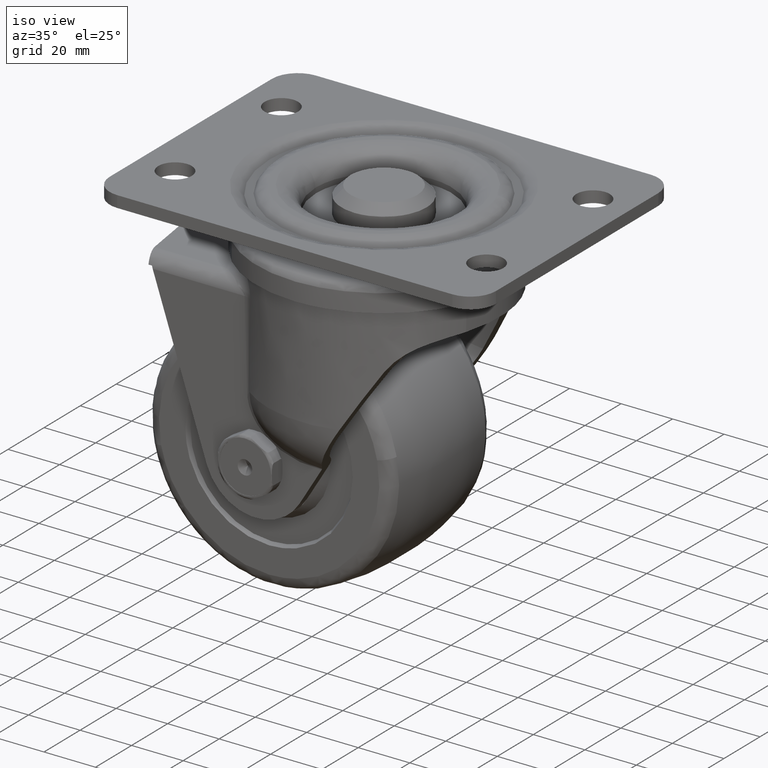
[diagram: clean part render]
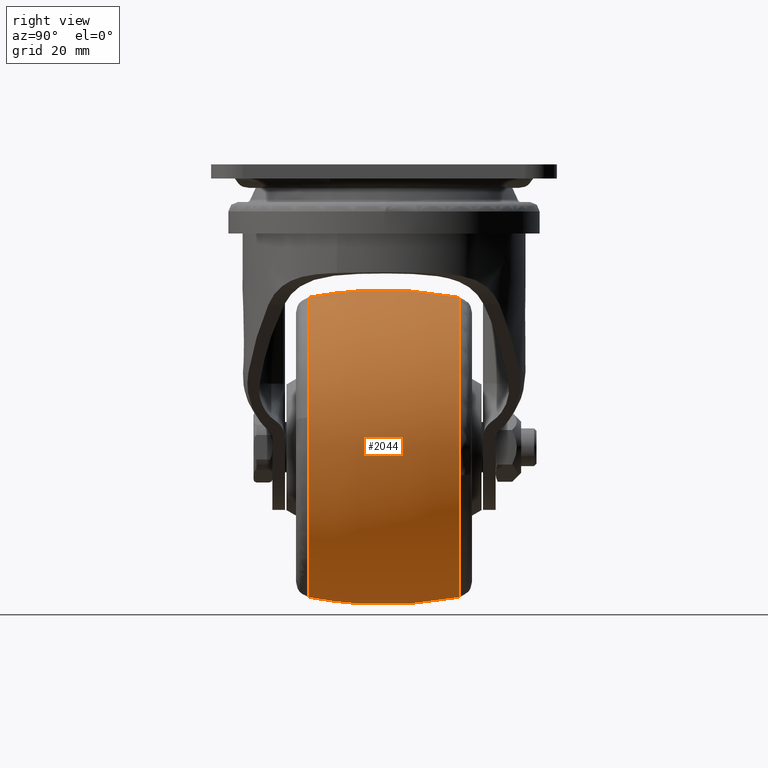
[diagram: tour spotlight — one face highlighted and labeled with its STEP entity id]
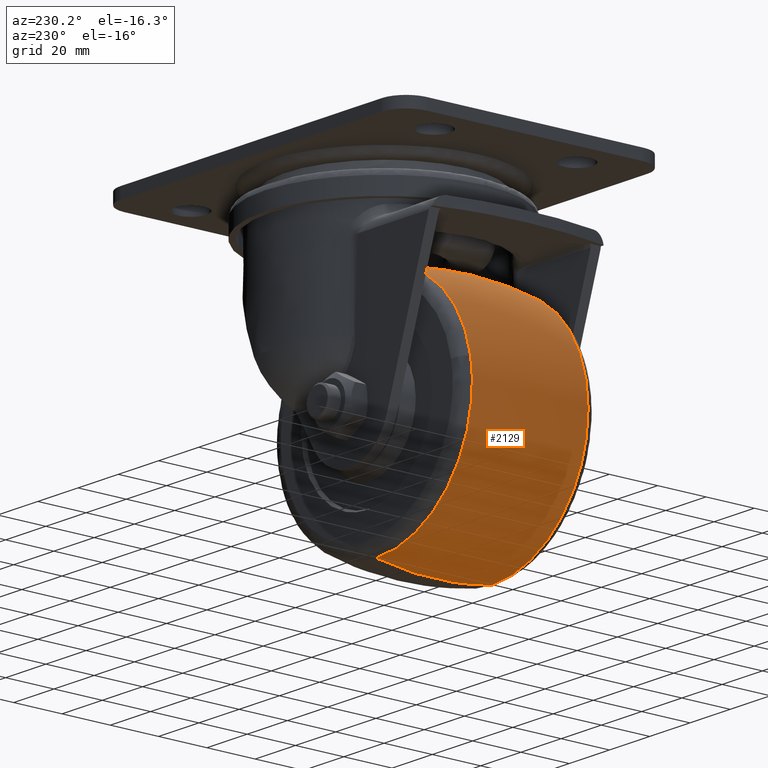
[diagram: tour spotlight — one face highlighted and labeled with its STEP entity id]
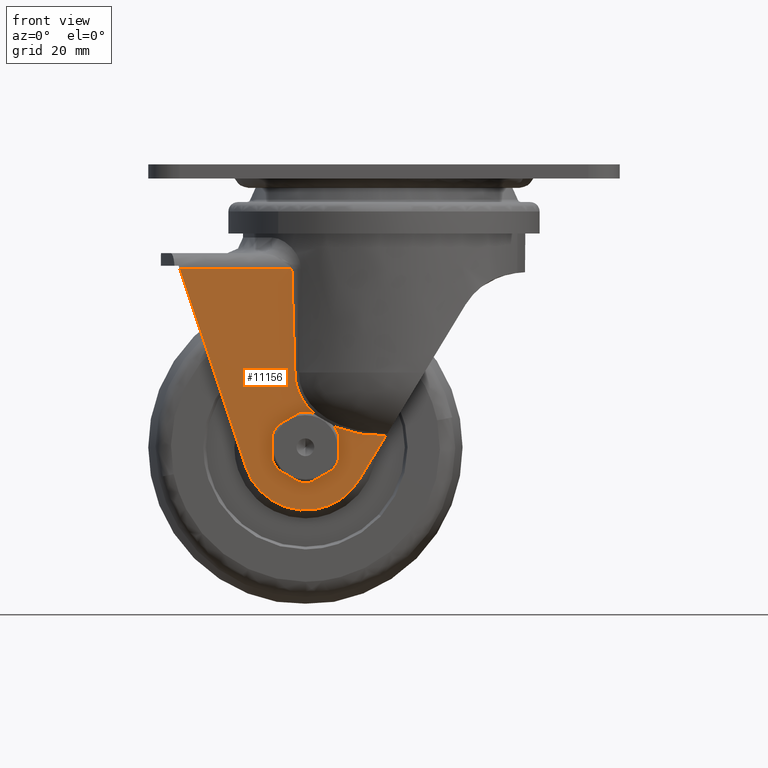
[diagram: tour spotlight — one face highlighted and labeled with its STEP entity id]
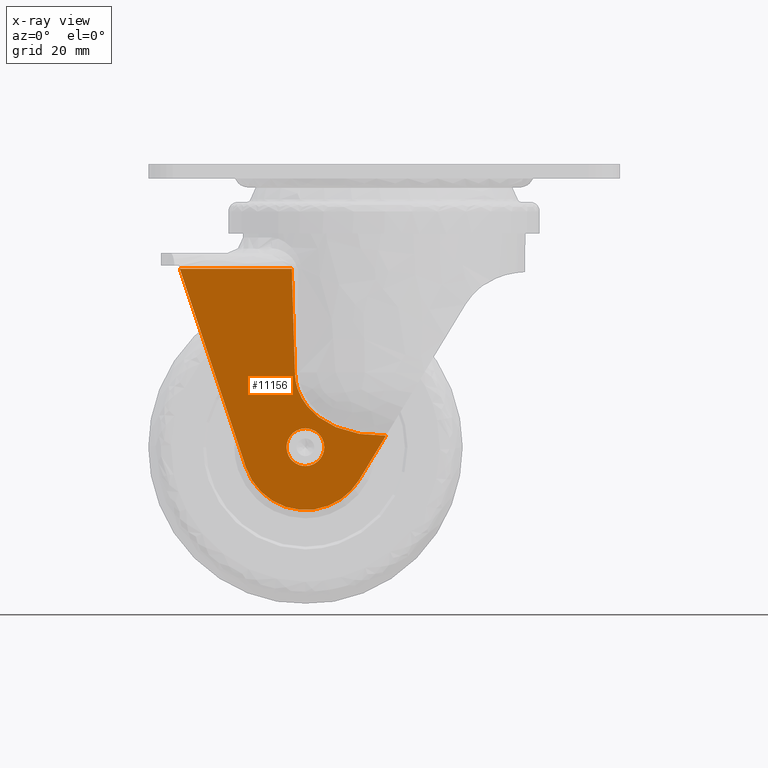
[diagram: x-ray of the same camera — body ghosted, this tour face saturated]
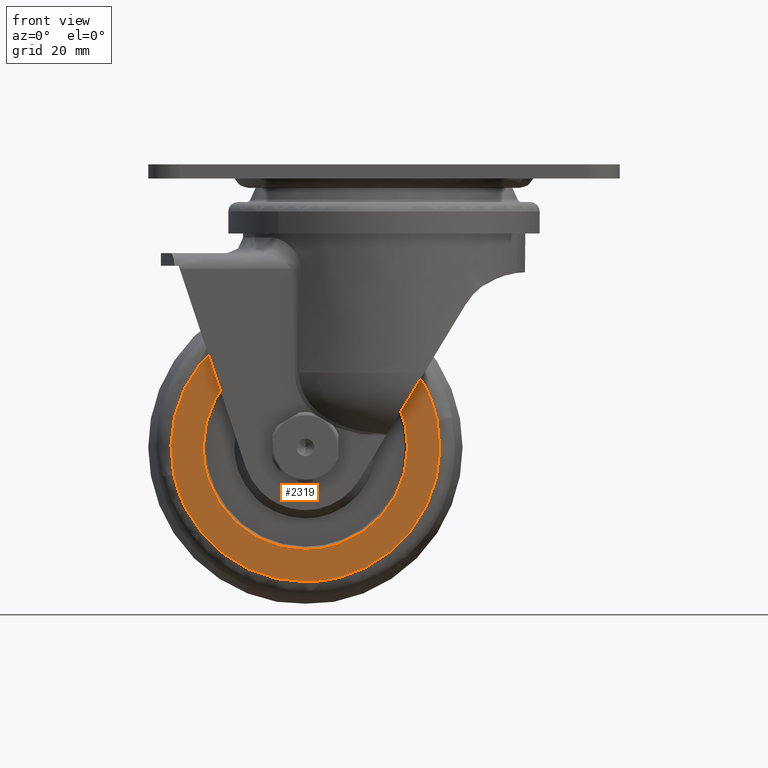
[diagram: tour spotlight — one face highlighted and labeled with its STEP entity id]
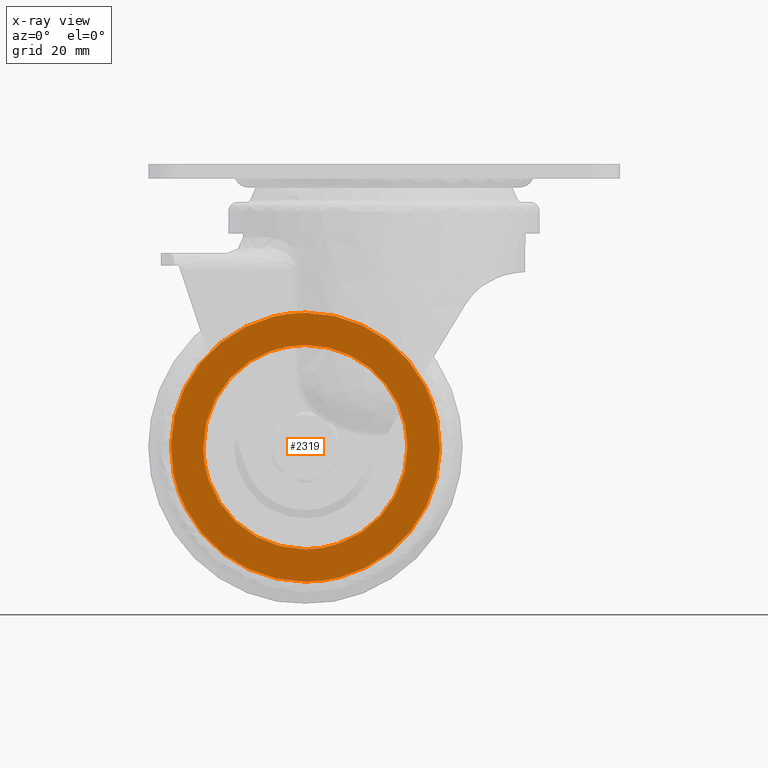
[diagram: x-ray of the same camera — body ghosted, this tour face saturated]
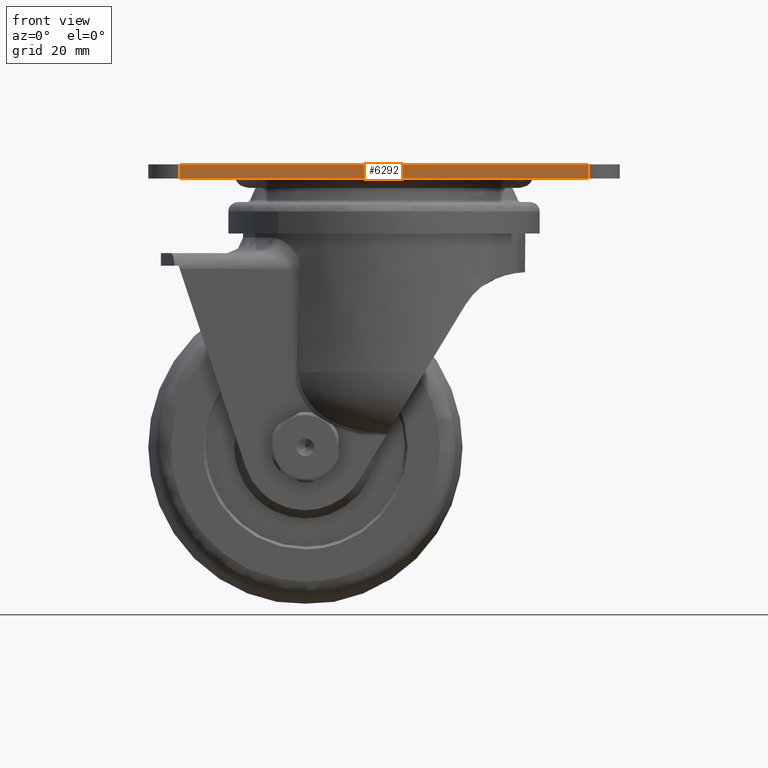
[diagram: tour spotlight — one face highlighted and labeled with its STEP entity id]
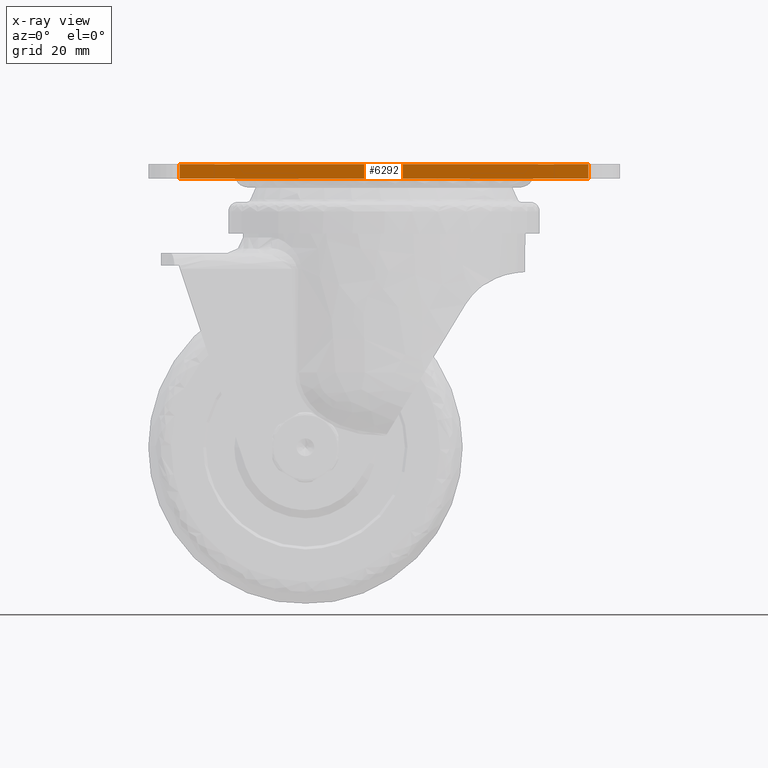
[diagram: x-ray of the same camera — body ghosted, this tour face saturated]
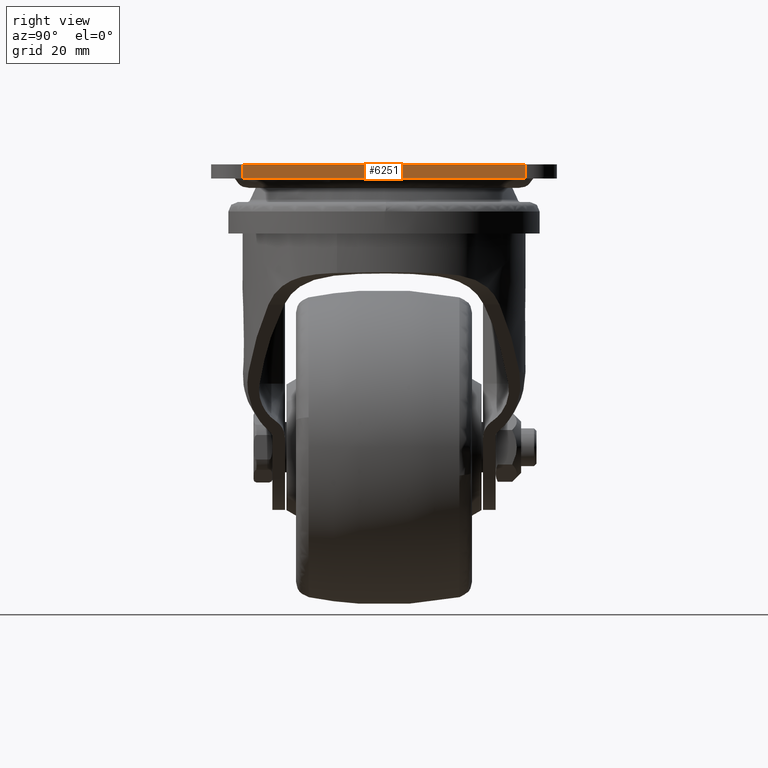
[diagram: tour spotlight — one face highlighted and labeled with its STEP entity id]
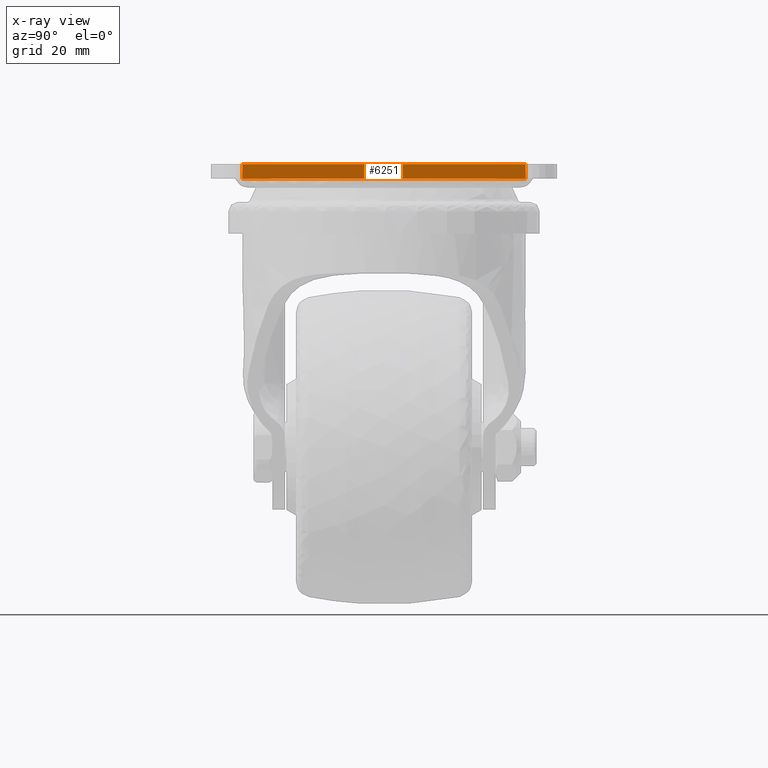
[diagram: x-ray of the same camera — body ghosted, this tour face saturated]
A machine part: a face-by-face anatomy tour. The part has 211 B-rep faces; the first image is the clean iso view, then the 6 largest visible faces are spotlighted one at a time (largest first), each with its STEP entity span.

Face 1 — right view, entity #2044. In plain terms, the highlighted face is a freeform B-spline surface patch.
Definition (entity closure, byte-faithful):
#1791=CARTESIAN_POINT('',(21.837924108671132,23.958310110629700,-98.934811874524399));
#1792=VERTEX_POINT('',#1791);
#1805=CARTESIAN_POINT('',(-25.0,23.958309637222861,-137.682514643800690));
#1806=VERTEX_POINT('',#1805);
#1807=CARTESIAN_POINT('',(21.837924108671132,23.958310110629700,-98.934811874524399));
#1808=CARTESIAN_POINT('',(21.275446329909009,23.958310092048350,-101.885490162111790));
#1809=CARTESIAN_POINT('',(19.902754582007891,23.958310059585202,-106.603558607515690));
#1810=CARTESIAN_POINT('',(16.665348978740621,23.958310004785758,-113.536668056454800));
#1811=CARTESIAN_POINT('',(13.157742149081390,23.958309956769721,-118.859427314824300));
#1812=CARTESIAN_POINT('',(9.290383589476669,23.958309911546021,-123.241364920149290));
#1813=CARTESIAN_POINT('',(5.458314414464343,23.958309870717940,-126.815331772235000));
#1814=CARTESIAN_POINT('',(1.249196707192043,23.958309829987250,-129.948236567638390));
#1815=CARTESIAN_POINT('',(-4.350032340229483,23.958309780856350,-133.142115514662890));
#1816=CARTESIAN_POINT('',(-9.939789064080459,23.958309736655711,-135.396552681078390));
#1817=CARTESIAN_POINT('',(-17.104481164676749,23.958309685565379,-137.213708118648900));
#1818=CARTESIAN_POINT('',(-21.910366344182719,23.958309655186870,-137.682880451971500));
#1819=CARTESIAN_POINT('',(-25.0,23.958309637222861,-137.682514643800690));
#1820=B_SPLINE_CURVE_WITH_KNOTS('',3,(#1807,#1808,#1809,#1810,#1811,#1812,#1813,#1814,#1815,#1816,#1817,#1818,#1819),.UNSPECIFIED.,.F.,.U.,(4,1,1,1,1,1,1,1,1,1,4),(0.000000064642990,9.011350370651215,14.675642365822339,22.914607261125418,28.063982974495811,32.183448526911121,38.620076099044319,43.769457620119972,51.493488829721542,56.642838773993120,65.911655242368838),.UNSPECIFIED.);
#1821=EDGE_CURVE('',#1792,#1806,#1820,.T.);
#1893=CARTESIAN_POINT('',(-25.0,23.958309673317920,-42.317485171051359));
#1894=VERTEX_POINT('',#1893);
#1912=CARTESIAN_POINT('',(-25.0,23.958309673317920,-42.317485171051359));
#1913=CARTESIAN_POINT('',(-22.378501134112579,23.958309683749160,-42.317261243678551));
#1914=CARTESIAN_POINT('',(-18.227907601275739,23.958309701788480,-42.660716314570926));
#1915=CARTESIAN_POINT('',(-12.242472803941171,23.958309731345881,-43.955504224110989));
#1916=CARTESIAN_POINT('',(-6.430799927375585,23.958309763093521,-45.900585170796532));
#1917=CARTESIAN_POINT('',(-0.755555647621444,23.958309798369790,-48.764267416224683));
#1918=CARTESIAN_POINT('',(5.093944120386595,23.958309839565128,-52.807148766410563));
#1919=CARTESIAN_POINT('',(9.765398648931717,23.958309877273422,-57.120995917792840));
#1920=CARTESIAN_POINT('',(13.690843643627090,23.958309914373480,-61.967324704175027));
#1921=CARTESIAN_POINT('',(16.409554982369031,23.958309943953481,-66.200644977426592));
#1922=CARTESIAN_POINT('',(18.991330709516401,23.958309976682489,-71.267253284174785));
#1923=CARTESIAN_POINT('',(20.913389112455850,23.958310008103268,-76.630896546107465));
#1924=CARTESIAN_POINT('',(22.188056033243171,23.958310039229101,-82.509891505856615));
#1925=CARTESIAN_POINT('',(22.753727649550829,23.958310065597139,-87.951333416667865));
#1926=CARTESIAN_POINT('',(22.660534889744259,23.958310089957870,-93.531865492434804));
#1927=CARTESIAN_POINT('',(22.165429390095120,23.958310104324941,-97.218136825549806));
#1928=CARTESIAN_POINT('',(21.837924108671132,23.958310110629700,-98.934811874524399));
#1929=B_SPLINE_CURVE_WITH_KNOTS('',3,(#1912,#1913,#1914,#1915,#1916,#1917,#1918,#1919,#1920,#1921,#1922,#1923,#1924,#1925,#1926,#1927,#1928),.UNSPECIFIED.,.F.,.U.,(4,1,1,1,1,1,1,1,1,1,1,1,1,1,4),(0.000000049231474,7.864457613523527,12.452054922703949,18.350410944022759,26.214904003332219,31.457900922726651,39.650071568802808,45.220665622742601,50.135928687367432,54.723536047524597,62.260344392626742,67.175653593170694,72.746336589717004,78.644705704622240,83.887623400126770),.UNSPECIFIED.);
#1930=EDGE_CURVE('',#1894,#1792,#1929,.T.);
#1936=CARTESIAN_POINT('',(-26.319254053322304,26.359384934699335,-42.810872718296451));
#1937=CARTESIAN_POINT('',(-26.397836884592920,13.329563290550523,-39.999999999999979));
#1938=CARTESIAN_POINT('',(-26.397836884592916,0.0,-39.999999999999993));
#1939=CARTESIAN_POINT('',(-26.397836884592913,-13.329573796156080,-39.999999999999979));
#1940=CARTESIAN_POINT('',(-26.319253930845917,-26.359405242504121,-42.810877099221912));
#1941=CARTESIAN_POINT('',(-25.663468529320671,26.359384934699335,-42.810872718296459));
#1942=CARTESIAN_POINT('',(-25.702988768323674,13.329563290550523,-39.999999999999979));
#1943=CARTESIAN_POINT('',(-25.702988768323674,0.0,-39.999999999999979));
#1944=CARTESIAN_POINT('',(-25.702988768323664,-13.329573796156080,-39.999999999999979));
#1945=CARTESIAN_POINT('',(-25.663468467725853,-26.359405242504117,-42.810877099221926));
#1946=CARTESIAN_POINT('',(22.189127281703549,26.359384934699339,-42.810872718296437));
#1947=CARTESIAN_POINT('',(25.000000000000021,13.329563290550526,-39.999999999999979));
#1948=CARTESIAN_POINT('',(25.000000000000014,0.0,-39.999999999999972));
#1949=CARTESIAN_POINT('',(25.000000000000018,-13.329573796156073,-39.999999999999964));
#1950=CARTESIAN_POINT('',(22.189122900778074,-26.359405242504113,-42.810877099221912));
#1951=CARTESIAN_POINT('',(22.189127281703549,26.359384934699339,-90.0));
#1952=CARTESIAN_POINT('',(25.000000000000021,13.329563290550524,-90.0));
#1953=CARTESIAN_POINT('',(25.000000000000011,0.0,-90.0));
#1954=CARTESIAN_POINT('',(25.000000000000011,-13.329573796156078,-90.0));
#1955=CARTESIAN_POINT('',(22.189122900778084,-26.359405242504113,-90.0));
#1956=CARTESIAN_POINT('',(22.189127281703549,26.359384934699339,-137.189127281703550));
#1957=CARTESIAN_POINT('',(25.000000000000021,13.329563290550526,-140.0));
#1958=CARTESIAN_POINT('',(25.000000000000014,0.0,-140.0));
#1959=CARTESIAN_POINT('',(25.000000000000018,-13.329573796156073,-140.0));
#1960=CARTESIAN_POINT('',(22.189122900778074,-26.359405242504113,-137.189122900778070));
#1961=CARTESIAN_POINT('',(-25.663468529320681,26.359384934699335,-137.189127281703580));
#1962=CARTESIAN_POINT('',(-25.702988768323674,13.329563290550523,-139.999999999999970));
#1963=CARTESIAN_POINT('',(-25.702988768323674,0.0,-140.000000000000030));
#1964=CARTESIAN_POINT('',(-25.702988768323674,-13.329573796156080,-139.999999999999940));
#1965=CARTESIAN_POINT('',(-25.663468467725853,-26.359405242504117,-137.189122900778020));
#1966=CARTESIAN_POINT('',(-26.319254053322314,26.359384934699332,-137.189127281703520));
#1967=CARTESIAN_POINT('',(-26.397836884592927,13.329563290550521,-139.999999999999970));
#1968=CARTESIAN_POINT('',(-26.397836884592927,0.0,-140.0));
#1969=CARTESIAN_POINT('',(-26.397836884592923,-13.329573796156080,-140.000000000000030));
#1970=CARTESIAN_POINT('',(-26.319253930845921,-26.359405242504117,-137.189122900777990));
#1978=(BOUNDED_SURFACE()B_SPLINE_SURFACE(2,2,((#1936,#1941,#1946,#1951,#1956,#1961,#1966),(#1937,#1942,#1947,#1952,#1957,#1962,#1967),(#1938,#1943,#1948,#1953,#1958,#1963,#1968),(#1939,#1944,#1949,#1954,#1959,#1964,#1969),(#1940,#1945,#1950,#1955,#1960,#1965,#1970)),.UNSPECIFIED.,.F.,.F.,.U.)B_SPLINE_SURFACE_WITH_KNOTS((3,2,3),(3,1,2,1,3),(0.0,27.022942539346140,54.045905853664060),(0.0,1.656854249492385,84.499566724111432,167.342279198730490,168.999133448222890),.UNSPECIFIED.)GEOMETRIC_REPRESENTATION_ITEM()RATIONAL_B_SPLINE_SURFACE(((0.973586254216268,0.967949160639764,0.680457388238075,0.962312067063260,0.680457388238075,0.967949160639764,0.973586254216268),(0.986872723406567,0.981158700775444,0.689743546588179,0.975444678144321,0.689743546588179,0.981158700775444,0.986872723406567),(1.011715728752538,1.005857864376269,0.707106781186548,1.0,0.707106781186548,1.005857864376269,1.011715728752538),(0.986872704307509,0.981158681786970,0.689743533239495,0.975444659266432,0.689743533239495,0.981158681786970,0.986872704307509),(0.973586233787261,0.967949140329042,0.680457373959866,0.962312046870823,0.680457373959866,0.967949140329042,0.973586233787262)))REPRESENTATION_ITEM('')SURFACE());
#1979=CARTESIAN_POINT('',(-25.0,-23.958326826985751,-42.317488520940053));
#1980=VERTEX_POINT('',#1979);
#1981=CARTESIAN_POINT('',(-25.0,23.958309673317920,-42.317485171051359));
#1982=CARTESIAN_POINT('',(-25.000000000000220,18.659365227805051,-41.282435322305624));
#1983=CARTESIAN_POINT('',(-24.999999999999691,9.799030693171423,-40.141865057731692));
#1984=CARTESIAN_POINT('',(-25.000000000000359,-6.283378042163218,-39.802411935203168));
#1985=CARTESIAN_POINT('',(-24.999999999999790,-16.934178397737771,-40.945061335032797));
#1986=CARTESIAN_POINT('',(-25.0,-23.958326826985751,-42.317488520940053));
#1987=B_SPLINE_CURVE_WITH_KNOTS('',3,(#1981,#1982,#1983,#1984,#1985,#1986),.UNSPECIFIED.,.F.,.U.,(4,1,1,4),(3.169660E-009,16.197226347983879,26.744240296185041,48.214991529738022),.UNSPECIFIED.);
#1988=EDGE_CURVE('',#1894,#1980,#1987,.T.);
#1989=ORIENTED_EDGE('',*,*,#1988,.T.);
#1990=CARTESIAN_POINT('',(21.721949065010978,-23.958328260504882,-80.477326707963172));
#1991=VERTEX_POINT('',#1990);
#1992=CARTESIAN_POINT('',(-25.0,-23.958326826985751,-42.317488520940053));
#1993=CARTESIAN_POINT('',(-21.938460817120990,-23.958326831749520,-42.317139438841323));
#1994=CARTESIAN_POINT('',(-17.006179445885120,-23.958326856455759,-42.794239599134457));
#1995=CARTESIAN_POINT('',(-9.992804191566014,-23.958326931645011,-44.596123765093978));
#1996=CARTESIAN_POINT('',(-4.218427865378708,-23.958327023499880,-46.919598950656663));
#1997=CARTESIAN_POINT('',(0.887222549597867,-23.958327135461769,-49.836285374577280));
#1998=CARTESIAN_POINT('',(5.904451180413933,-23.958327274091410,-53.504693184568183));
#1999=CARTESIAN_POINT('',(10.347528214502219,-23.958327432334411,-57.748380702688060));
#2000=CARTESIAN_POINT('',(13.917412968359971,-23.958327600617149,-62.311749121784587));
#2001=CARTESIAN_POINT('',(16.559734220348538,-23.958327753391728,-66.480852535889170));
#2002=CARTESIAN_POINT('',(19.460283014228128,-23.958327960865489,-72.172663283384921));
#2003=CARTESIAN_POINT('',(21.043182470579939,-23.958328140591941,-77.143994535288144));
#2004=CARTESIAN_POINT('',(21.721949065010978,-23.958328260504882,-80.477326707963172));
#2005=B_SPLINE_CURVE_WITH_KNOTS('',3,(#1992,#1993,#1994,#1995,#1996,#1997,#1998,#1999,#2000,#2001,#2002,#2003,#2004),.UNSPECIFIED.,.F.,.U.,(4,1,1,1,1,1,1,1,1,1,4),(0.000000064322975,9.184536827555206,14.797348009679350,21.685796653823960,27.808835207621581,32.401151246598900,40.309996201530652,46.177941931660371,49.749723561055617,55.107403918742570,65.312453591198775),.UNSPECIFIED.);
#2006=EDGE_CURVE('',#1980,#1991,#2005,.T.);
#2007=ORIENTED_EDGE('',*,*,#2006,.T.);
#2008=CARTESIAN_POINT('',(-25.0,-23.958330105816049,-137.682510646549500));
#2009=VERTEX_POINT('',#2008);
#2010=CARTESIAN_POINT('',(21.721949065010978,-23.958328260504882,-80.477326707963172));
#2011=CARTESIAN_POINT('',(22.183430034781860,-23.958328335927980,-82.740933455573909));
#2012=CARTESIAN_POINT('',(22.705761723161011,-23.958328470475148,-86.788432434857114));
#2013=CARTESIAN_POINT('',(22.707588172013551,-23.958328649215179,-92.187123113175247));
#2014=CARTESIAN_POINT('',(22.251152295334158,-23.958328804757901,-96.899544820463646));
#2015=CARTESIAN_POINT('',(21.335818421085168,-23.958328961388158,-101.659241697360700));
#2016=CARTESIAN_POINT('',(19.507961655919420,-23.958329154632139,-107.553526299456710));
#2017=CARTESIAN_POINT('',(16.954811745925682,-23.958329330310299,-112.940038339394210));
#2018=CARTESIAN_POINT('',(13.861385553180551,-23.958329486629570,-117.758808236039800));
#2019=CARTESIAN_POINT('',(10.997213226774241,-23.958329603942779,-121.392211806840000));
#2020=CARTESIAN_POINT('',(7.095469107708080,-23.958329733660729,-125.432927499719800));
#2021=CARTESIAN_POINT('',(2.542438696534092,-23.958329850396691,-129.101954151255510));
#2022=CARTESIAN_POINT('',(-2.551472512736429,-23.958329946945010,-132.178287665316110));
#2023=CARTESIAN_POINT('',(-8.151998485410880,-23.958330026741152,-134.764509508885200));
#2024=CARTESIAN_POINT('',(-15.539442277939649,-23.958330094078661,-137.030621575946500));
#2025=CARTESIAN_POINT('',(-21.589712928177260,-23.958330109382270,-137.683029089045590));
#2026=CARTESIAN_POINT('',(-25.0,-23.958330105816049,-137.682510646549500));
#2027=B_SPLINE_CURVE_WITH_KNOTS('',3,(#2010,#2011,#2012,#2013,#2014,#2015,#2016,#2017,#2018,#2019,#2020,#2021,#2022,#2023,#2024,#2025,#2026),.UNSPECIFIED.,.F.,.U.,(4,1,1,1,1,1,1,1,1,1,1,1,1,1,4),(0.000000054540465,6.930503601722407,12.210950664784660,16.171305078915481,21.121705536998679,26.732158720073681,34.652830896038793,38.943170712920377,43.893470641812243,48.513893347927777,55.774470951075131,61.384947631507814,66.335364215838709,74.256027809985852,84.486818511537791),.UNSPECIFIED.);
#2028=EDGE_CURVE('',#1991,#2009,#2027,.T.);
#2029=ORIENTED_EDGE('',*,*,#2028,.T.);
#2030=CARTESIAN_POINT('',(-25.0,23.958309637222861,-137.682514643800690));
#2031=CARTESIAN_POINT('',(-24.999999999999989,20.507820227192799,-138.356378720891910));
#2032=CARTESIAN_POINT('',(-24.999999999999979,13.052941539654840,-139.488177534934490));
#2033=CARTESIAN_POINT('',(-25.000000000000028,2.512830943106781,-140.124194298740800));
#2034=CARTESIAN_POINT('',(-25.000000000000099,-10.047730050174490,-139.821349646660710));
#2035=CARTESIAN_POINT('',(-24.999999999999812,-18.536148359710420,-138.741613033722500));
#2036=CARTESIAN_POINT('',(-25.0,-23.958330105816049,-137.682510646549500));
#2037=B_SPLINE_CURVE_WITH_KNOTS('',3,(#2030,#2031,#2032,#2033,#2034,#2035,#2036),.UNSPECIFIED.,.F.,.U.,(4,1,1,1,4),(3.177412E-009,10.547027927037171,22.600794138112740,31.641083779780331,48.214994835547230),.UNSPECIFIED.);
#2038=EDGE_CURVE('',#1806,#2009,#2037,.T.);
#2039=ORIENTED_EDGE('',*,*,#2038,.F.);
#2040=ORIENTED_EDGE('',*,*,#1821,.F.);
#2041=ORIENTED_EDGE('',*,*,#1930,.F.);
#2042=EDGE_LOOP('',(#1989,#2007,#2029,#2039,#2040,#2041));
#2043=FACE_OUTER_BOUND('',#2042,.T.);
#2044=ADVANCED_FACE('',(#2043),#1978,.T.);

Face 2 — auxiliary view, entity #2129. In plain terms, the highlighted face is a freeform B-spline surface patch.
Definition (entity closure, byte-faithful):
#1805=CARTESIAN_POINT('',(-25.0,23.958309637222861,-137.682514643800690));
#1806=VERTEX_POINT('',#1805);
#1823=CARTESIAN_POINT('',(-71.837924125711538,23.958310114005950,-81.065188122224953));
#1824=VERTEX_POINT('',#1823);
#1825=CARTESIAN_POINT('',(-25.0,23.958309637222861,-137.682514643800690));
#1826=CARTESIAN_POINT('',(-27.184544262981671,23.958309645851820,-137.682558186176610));
#1827=CARTESIAN_POINT('',(-32.318318505565230,23.958309667951060,-137.329317198719200));
#1828=CARTESIAN_POINT('',(-39.260625710148467,23.958309703758179,-135.702350768035810));
#1829=CARTESIAN_POINT('',(-45.346529532051797,23.958309740503591,-133.236886393794610));
#1830=CARTESIAN_POINT('',(-50.054282547418012,23.958309772297788,-130.675796056938910));
#1831=CARTESIAN_POINT('',(-55.094005975731733,23.958309810153629,-127.192939434268990));
#1832=CARTESIAN_POINT('',(-59.765359970110190,23.958309850837271,-122.878956110351790));
#1833=CARTESIAN_POINT('',(-63.690842214863594,23.958309891318081,-118.032681608137390));
#1834=CARTESIAN_POINT('',(-66.941612927921383,23.958309930242390,-112.971141735067800));
#1835=CARTESIAN_POINT('',(-69.463529427549204,23.958309967787489,-107.618761111797890));
#1836=CARTESIAN_POINT('',(-71.178645852294196,23.958310002512231,-102.194968463552000));
#1837=CARTESIAN_POINT('',(-72.210676824282515,23.958310031957041,-97.272451405123135));
#1838=CARTESIAN_POINT('',(-72.753737102011726,23.958310061021528,-92.048668394217330));
#1839=CARTESIAN_POINT('',(-72.660530682636306,23.958310089412549,-86.468133917496559));
#1840=CARTESIAN_POINT('',(-72.165430168866379,23.958310106453339,-82.781863146847655));
#1841=CARTESIAN_POINT('',(-71.837924125711538,23.958310114005950,-81.065188122224953));
#1842=B_SPLINE_CURVE_WITH_KNOTS('',3,(#1825,#1826,#1827,#1828,#1829,#1830,#1831,#1832,#1833,#1834,#1835,#1836,#1837,#1838,#1839,#1840,#1841),.UNSPECIFIED.,.F.,.U.,(4,1,1,1,1,1,1,1,1,1,1,1,1,1,4),(0.000000049328847,6.553664991915099,15.401240772207430,21.299594149613409,26.214903942956258,31.457900850253839,39.650071477426231,45.220665518510089,50.135928571789528,57.672728138071989,62.915718743644653,67.175653438266210,72.746336421958134,78.644705523255311,83.887623206664628),.UNSPECIFIED.);
#1843=EDGE_CURVE('',#1806,#1824,#1842,.T.);
#1893=CARTESIAN_POINT('',(-25.0,23.958309673317920,-42.317485171051359));
#1894=VERTEX_POINT('',#1893);
#1895=CARTESIAN_POINT('',(-71.837924125711538,23.958310114005950,-81.065188122224953));
#1896=CARTESIAN_POINT('',(-71.275392025019912,23.958310097787081,-78.114525411008231));
#1897=CARTESIAN_POINT('',(-69.926913665597425,23.958310069624972,-73.479185483266505));
#1898=CARTESIAN_POINT('',(-67.395530523672875,23.958310031015621,-68.020309290386336));
#1899=CARTESIAN_POINT('',(-64.883064281593121,23.958309997603951,-63.719081662750511));
#1900=CARTESIAN_POINT('',(-61.849542201751007,23.958309961748149,-59.545837505126109));
#1901=CARTESIAN_POINT('',(-57.852070832773229,23.958309919915020,-55.278531569303219));
#1902=CARTESIAN_POINT('',(-53.631442790584352,23.958309880034729,-51.748420581589293));
#1903=CARTESIAN_POINT('',(-48.905574219541023,23.958309838970891,-48.612404348774092));
#1904=CARTESIAN_POINT('',(-43.298851431738008,23.958309794179460,-45.784928608254212));
#1905=CARTESIAN_POINT('',(-37.499494805814017,23.958309752221400,-43.854879119172331));
#1906=CARTESIAN_POINT('',(-31.264975798675351,23.958309710764642,-42.610102346795671));
#1907=CARTESIAN_POINT('',(-27.403024058043219,23.958309687186720,-42.317339924793210));
#1908=CARTESIAN_POINT('',(-25.0,23.958309673317920,-42.317485171051359));
#1909=B_SPLINE_CURVE_WITH_KNOTS('',3,(#1895,#1896,#1897,#1898,#1899,#1900,#1901,#1902,#1903,#1904,#1905,#1906,#1907,#1908),.UNSPECIFIED.,.F.,.U.,(4,1,1,1,1,1,1,1,1,1,1,4),(0.000000064817911,9.011350394266536,14.418168233708460,18.022720922648741,23.944494724713980,29.866268035015221,35.530497924093737,40.422368998946553,46.859061324829952,54.325626461001221,58.702603311818507,65.911655414052831),.UNSPECIFIED.);
#1910=EDGE_CURVE('',#1824,#1894,#1909,.T.);
#1979=CARTESIAN_POINT('',(-25.0,-23.958326826985751,-42.317488520940053));
#1980=VERTEX_POINT('',#1979);
#1981=CARTESIAN_POINT('',(-25.0,23.958309673317920,-42.317485171051359));
#1982=CARTESIAN_POINT('',(-25.000000000000220,18.659365227805051,-41.282435322305624));
#1983=CARTESIAN_POINT('',(-24.999999999999691,9.799030693171423,-40.141865057731692));
#1984=CARTESIAN_POINT('',(-25.000000000000359,-6.283378042163218,-39.802411935203168));
#1985=CARTESIAN_POINT('',(-24.999999999999790,-16.934178397737771,-40.945061335032797));
#1986=CARTESIAN_POINT('',(-25.0,-23.958326826985751,-42.317488520940053));
#1987=B_SPLINE_CURVE_WITH_KNOTS('',3,(#1981,#1982,#1983,#1984,#1985,#1986),.UNSPECIFIED.,.F.,.U.,(4,1,1,4),(3.169660E-009,16.197226347983879,26.744240296185041,48.214991529738022),.UNSPECIFIED.);
#1988=EDGE_CURVE('',#1894,#1980,#1987,.T.);
#2008=CARTESIAN_POINT('',(-25.0,-23.958330105816049,-137.682510646549500));
#2009=VERTEX_POINT('',#2008);
#2030=CARTESIAN_POINT('',(-25.0,23.958309637222861,-137.682514643800690));
#2031=CARTESIAN_POINT('',(-24.999999999999989,20.507820227192799,-138.356378720891910));
#2032=CARTESIAN_POINT('',(-24.999999999999979,13.052941539654840,-139.488177534934490));
#2033=CARTESIAN_POINT('',(-25.000000000000028,2.512830943106781,-140.124194298740800));
#2034=CARTESIAN_POINT('',(-25.000000000000099,-10.047730050174490,-139.821349646660710));
#2035=CARTESIAN_POINT('',(-24.999999999999812,-18.536148359710420,-138.741613033722500));
#2036=CARTESIAN_POINT('',(-25.0,-23.958330105816049,-137.682510646549500));
#2037=B_SPLINE_CURVE_WITH_KNOTS('',3,(#2030,#2031,#2032,#2033,#2034,#2035,#2036),.UNSPECIFIED.,.F.,.U.,(4,1,1,1,4),(3.177412E-009,10.547027927037171,22.600794138112740,31.641083779780331,48.214994835547230),.UNSPECIFIED.);
#2038=EDGE_CURVE('',#1806,#2009,#2037,.T.);
#2045=CARTESIAN_POINT('',(-23.680745946677700,26.359384934699335,-137.189127281703520));
#2046=CARTESIAN_POINT('',(-23.602163115407080,13.329563290550523,-139.999999999999970));
#2047=CARTESIAN_POINT('',(-23.602163115407084,0.0,-140.0));
#2048=CARTESIAN_POINT('',(-23.602163115407084,-13.329573796156080,-140.000000000000030));
#2049=CARTESIAN_POINT('',(-23.680746069154086,-26.359405242504121,-137.189122900778020));
#2050=CARTESIAN_POINT('',(-24.336531470679333,26.359384934699335,-137.189127281703580));
#2051=CARTESIAN_POINT('',(-24.297011231676329,13.329563290550523,-139.999999999999970));
#2052=CARTESIAN_POINT('',(-24.297011231676326,0.0,-140.000000000000030));
#2053=CARTESIAN_POINT('',(-24.297011231676329,-13.329573796156080,-139.999999999999940));
#2054=CARTESIAN_POINT('',(-24.336531532274158,-26.359405242504117,-137.189122900778020));
#2055=CARTESIAN_POINT('',(-72.189127281703577,26.359384934699339,-137.189127281703550));
#2056=CARTESIAN_POINT('',(-75.000000000000028,13.329563290550526,-140.0));
#2057=CARTESIAN_POINT('',(-75.000000000000028,0.0,-140.0));
#2058=CARTESIAN_POINT('',(-75.000000000000014,-13.329573796156073,-140.0));
#2059=CARTESIAN_POINT('',(-72.189122900778074,-26.359405242504113,-137.189122900778050));
#2060=CARTESIAN_POINT('',(-72.189127281703534,26.359384934699339,-90.0));
#2061=CARTESIAN_POINT('',(-75.0,13.329563290550524,-90.0));
#2062=CARTESIAN_POINT('',(-75.000000000000014,0.0,-90.0));
#2063=CARTESIAN_POINT('',(-75.000000000000014,-13.329573796156078,-90.0));
#2064=CARTESIAN_POINT('',(-72.189122900778074,-26.359405242504113,-90.0));
#2065=CARTESIAN_POINT('',(-72.189127281703577,26.359384934699339,-42.810872718296437));
#2066=CARTESIAN_POINT('',(-75.000000000000028,13.329563290550526,-39.999999999999979));
#2067=CARTESIAN_POINT('',(-75.000000000000028,0.0,-39.999999999999972));
#2068=CARTESIAN_POINT('',(-75.000000000000014,-13.329573796156073,-39.999999999999964));
#2069=CARTESIAN_POINT('',(-72.189122900778074,-26.359405242504113,-42.810877099221912));
#2070=CARTESIAN_POINT('',(-24.336531470679326,26.359384934699335,-42.810872718296459));
#2071=CARTESIAN_POINT('',(-24.297011231676329,13.329563290550523,-39.999999999999979));
#2072=CARTESIAN_POINT('',(-24.297011231676326,0.0,-39.999999999999993));
#2073=CARTESIAN_POINT('',(-24.297011231676329,-13.329573796156080,-39.999999999999979));
#2074=CARTESIAN_POINT('',(-24.336531532274147,-26.359405242504117,-42.810877099221926));
#2075=CARTESIAN_POINT('',(-23.680745946677696,26.359384934699332,-42.810872718296459));
#2076=CARTESIAN_POINT('',(-23.602163115407077,13.329563290550521,-39.999999999999972));
#2077=CARTESIAN_POINT('',(-23.602163115407073,0.0,-39.999999999999993));
#2078=CARTESIAN_POINT('',(-23.602163115407073,-13.329573796156080,-39.999999999999993));
#2079=CARTESIAN_POINT('',(-23.680746069154072,-26.359405242504117,-42.810877099221919));
#2087=(BOUNDED_SURFACE()B_SPLINE_SURFACE(2,2,((#2045,#2050,#2055,#2060,#2065,#2070,#2075),(#2046,#2051,#2056,#2061,#2066,#2071,#2076),(#2047,#2052,#2057,#2062,#2067,#2072,#2077),(#2048,#2053,#2058,#2063,#2068,#2073,#2078),(#2049,#2054,#2059,#2064,#2069,#2074,#2079)),.UNSPECIFIED.,.F.,.F.,.U.)B_SPLINE_SURFACE_WITH_KNOTS((3,2,3),(3,1,2,1,3),(0.0,27.022942539346140,54.045905853664060),(0.0,1.656854249492389,84.499566724111403,167.342279198730410,168.999133448222810),.UNSPECIFIED.)GEOMETRIC_REPRESENTATION_ITEM()RATIONAL_B_SPLINE_SURFACE(((0.973586254216268,0.967949160639764,0.680457388238075,0.962312067063260,0.680457388238075,0.967949160639764,0.973586254216268),(0.986872723406567,0.981158700775444,0.689743546588179,0.975444678144321,0.689743546588179,0.981158700775444,0.986872723406567),(1.011715728752538,1.005857864376269,0.707106781186548,1.0,0.707106781186548,1.005857864376269,1.011715728752538),(0.986872704307509,0.981158681786970,0.689743533239495,0.975444659266432,0.689743533239495,0.981158681786970,0.986872704307509),(0.973586233787261,0.967949140329042,0.680457373959866,0.962312046870823,0.680457373959866,0.967949140329042,0.973586233787262)))REPRESENTATION_ITEM('')SURFACE());
#2088=ORIENTED_EDGE('',*,*,#1988,.F.);
#2089=ORIENTED_EDGE('',*,*,#1910,.F.);
#2090=ORIENTED_EDGE('',*,*,#1843,.F.);
#2091=ORIENTED_EDGE('',*,*,#2038,.T.);
#2092=CARTESIAN_POINT('',(-71.721948920214274,-23.958328918930359,-99.522673262524989));
#2093=VERTEX_POINT('',#2092);
#2094=CARTESIAN_POINT('',(-25.0,-23.958330105816049,-137.682510646549500));
#2095=CARTESIAN_POINT('',(-28.316670736276428,-23.958330111161150,-137.683027197076090));
#2096=CARTESIAN_POINT('',(-34.354461878449143,-23.958330099924101,-137.049936929226110));
#2097=CARTESIAN_POINT('',(-42.522979687741191,-23.958330031174569,-134.574222515560710));
#2098=CARTESIAN_POINT('',(-49.410405244143512,-23.958329930106160,-131.183446029844590));
#2099=CARTESIAN_POINT('',(-55.481798439723967,-23.958329798742870,-126.916222083891300));
#2100=CARTESIAN_POINT('',(-60.391086389080847,-23.958329649891422,-122.176626726032590));
#2101=CARTESIAN_POINT('',(-63.972667444869842,-23.958329505076598,-117.623586902497390));
#2102=CARTESIAN_POINT('',(-66.831635900841903,-23.958329359609181,-113.085924887217800));
#2103=CARTESIAN_POINT('',(-69.663600131024893,-23.958329171541699,-107.261356895128400));
#2104=CARTESIAN_POINT('',(-71.127840418869539,-23.958329014426440,-102.439274049623710));
#2105=CARTESIAN_POINT('',(-71.721948920214274,-23.958328918930359,-99.522673262524989));
#2106=B_SPLINE_CURVE_WITH_KNOTS('',3,(#2094,#2095,#2096,#2097,#2098,#2099,#2100,#2101,#2102,#2103,#2104,#2105),.UNSPECIFIED.,.F.,.U.,(4,1,1,1,1,1,1,1,1,4),(0.000000064286866,9.949919456450182,18.114003394340870,25.512704158925580,32.911301480631572,40.309995704682173,45.922806540236323,50.259975688601081,56.383022522490087,65.312452786213441),.UNSPECIFIED.);
#2107=EDGE_CURVE('',#2009,#2093,#2106,.T.);
#2108=ORIENTED_EDGE('',*,*,#2107,.T.);
#2109=CARTESIAN_POINT('',(-71.721948920214274,-23.958328918930359,-99.522673262524989));
#2110=CARTESIAN_POINT('',(-72.271431781978080,-23.958328823332060,-96.827897536276723));
#2111=CARTESIAN_POINT('',(-72.838984469682401,-23.958328647740320,-91.891486838625838));
#2112=CARTESIAN_POINT('',(-72.561965822166286,-23.958328407548098,-85.170582746573515));
#2113=CARTESIAN_POINT('',(-71.616548501387939,-23.958328204839479,-79.519890582320386));
#2114=CARTESIAN_POINT('',(-70.022430924447349,-23.958328002616710,-73.902278378039483));
#2115=CARTESIAN_POINT('',(-67.244117905872670,-23.958327768003880,-67.412785297077193));
#2116=CARTESIAN_POINT('',(-63.304889576744650,-23.958327544738669,-61.276046463012328));
#2117=CARTESIAN_POINT('',(-58.838977687005880,-23.958327360549770,-56.249894197412310));
#2118=CARTESIAN_POINT('',(-54.228009638506059,-23.958327209276501,-52.150274155728283));
#2119=CARTESIAN_POINT('',(-48.929504827562489,-23.958327075532171,-48.562319058145697));
#2120=CARTESIAN_POINT('',(-42.375685366478002,-23.958326955536862,-45.397340471350759));
#2121=CARTESIAN_POINT('',(-34.460546614185837,-23.958326860393662,-42.969418492101397));
#2122=CARTESIAN_POINT('',(-28.410293199400240,-23.958326830620081,-42.316920663850063));
#2123=CARTESIAN_POINT('',(-25.0,-23.958326826985751,-42.317488520940053));
#2124=B_SPLINE_CURVE_WITH_KNOTS('',3,(#2109,#2110,#2111,#2112,#2113,#2114,#2115,#2116,#2117,#2118,#2119,#2120,#2121,#2122,#2123),.UNSPECIFIED.,.F.,.U.,(4,1,1,1,1,1,1,1,1,1,1,1,4),(0.000000054511389,8.250663007729031,14.851174858972101,20.131621752583609,25.412068829981539,32.342615115074622,41.253385116814037,47.193747844958899,52.474200489948089,59.734818051810137,66.335364866092860,74.256028537886678,84.486819339732065),.UNSPECIFIED.);
#2125=EDGE_CURVE('',#2093,#1980,#2124,.T.);
#2126=ORIENTED_EDGE('',*,*,#2125,.T.);
#2127=EDGE_LOOP('',(#2088,#2089,#2090,#2091,#2108,#2126));
#2128=FACE_OUTER_BOUND('',#2127,.T.);
#2129=ADVANCED_FACE('',(#2128),#2087,.T.);

Face 3 — front view, entity #11156. An x-ray twin of the same camera follows (body ghosted, this face saturated) — the face is partly hidden behind the body. In plain terms, the highlighted face is a freeform B-spline surface patch.
Definition (entity closure, byte-faithful):
#8022=CARTESIAN_POINT('',(-28.332843133014400,-35.500000000000000,-66.218025754067000));
#8023=VERTEX_POINT('',#8022);
#8032=CARTESIAN_POINT('',(0.629517540888795,-35.500000000000000,-86.318193054103801));
#8033=VERTEX_POINT('',#8032);
#8034=CARTESIAN_POINT('',(0.629517540888795,-35.500000000000000,-86.318193054103801));
#8035=CARTESIAN_POINT('',(-4.334218756520065,-35.500000000000000,-86.483536350289896));
#8036=CARTESIAN_POINT('',(-14.075297431335940,-35.500000000000000,-84.511342706468213));
#8037=CARTESIAN_POINT('',(-22.713141611350899,-35.500000000000000,-79.598420170845202));
#8038=CARTESIAN_POINT('',(-26.812345772117698,-35.500000000000000,-73.519608670547996));
#8039=CARTESIAN_POINT('',(-28.332539472734052,-35.500000000000000,-68.733275935034698));
#8040=CARTESIAN_POINT('',(-28.332843133014400,-35.500000000000000,-66.218025754067000));
#8041=B_SPLINE_CURVE_WITH_KNOTS('',2,(#8034,#8035,#8036,#8037,#8038,#8039,#8040),.UNSPECIFIED.,.F.,.U.,(3,1,1,1,1,3),(4.692976014984435,12.035914106949051,20.174352584474899,29.603615189209240,34.657547056526830,39.711478923844432),.UNSPECIFIED.);
#8042=EDGE_CURVE('',#8033,#8023,#8041,.T.);
#8178=CARTESIAN_POINT('',(-29.321493822791549,-35.500000000000000,-33.262512999999998));
#8179=VERTEX_POINT('',#8178);
#8190=CARTESIAN_POINT('',(-28.332843133014400,-35.500000000000000,-66.218025754067000));
#8191=CARTESIAN_POINT('',(-28.332883671815399,-35.500000000000000,-62.566004113806102));
#8192=CARTESIAN_POINT('',(-28.579785404277001,-35.500000000000000,-55.332742347235012));
#8193=CARTESIAN_POINT('',(-29.074471908382449,-35.500000000000000,-44.337952576233953));
#8194=CARTESIAN_POINT('',(-29.321454418196101,-35.500000000000000,-36.936194183390448));
#8195=CARTESIAN_POINT('',(-29.321493822791499,-35.500000000000000,-33.262512999974099));
#8196=B_SPLINE_CURVE_WITH_KNOTS('',2,(#8190,#8191,#8192,#8193,#8194,#8195),.UNSPECIFIED.,.F.,.U.,(3,1,1,1,3),(5.124012599230092,14.311987153338290,19.612890731552550,24.733548995494811,32.974967988899202),.UNSPECIFIED.);
#8197=EDGE_CURVE('',#8023,#8179,#8196,.T.);
#9448=CARTESIAN_POINT('',(-20.794543869140679,-35.500000000006587,-85.720496823365295));
#9449=VERTEX_POINT('',#9448);
#9455=CARTESIAN_POINT('',(-25.0,-35.500000000013202,-83.999999999999986));
#9456=VERTEX_POINT('',#9455);
#9457=CARTESIAN_POINT('',(-20.794543869140679,-35.500000000006587,-85.720496823365295));
#9458=CARTESIAN_POINT('',(-21.330778030735811,-35.500000000007297,-85.192483151769409));
#9459=CARTESIAN_POINT('',(-22.173610077151970,-35.500000000008953,-84.631204944147584));
#9460=CARTESIAN_POINT('',(-23.640950980774459,-35.500000000010722,-84.112632953317544));
#9461=CARTESIAN_POINT('',(-24.441734698968322,-35.500000000012612,-83.999793124698513));
#9462=CARTESIAN_POINT('',(-25.0,-35.500000000013202,-83.999999999999986));
#9463=B_SPLINE_CURVE_WITH_KNOTS('',3,(#9457,#9458,#9459,#9460,#9461,#9462),.UNSPECIFIED.,.F.,.U.,(4,1,1,4),(0.000000050971038,2.257246797266607,2.985345931189871,4.660058029288478),.UNSPECIFIED.);
#9464=EDGE_CURVE('',#9449,#9456,#9463,.T.);
#9466=CARTESIAN_POINT('',(-30.999999999999300,-35.500000000006587,-90.000002902911874));
#9467=VERTEX_POINT('',#9466);
#9468=CARTESIAN_POINT('',(-25.0,-35.500000000013202,-83.999999999999986));
#9469=CARTESIAN_POINT('',(-25.368146834104451,-35.500000000012768,-83.999966341129678));
#9470=CARTESIAN_POINT('',(-26.128988905647581,-35.500000000011923,-84.070231940683911));
#9471=CARTESIAN_POINT('',(-27.218575140707049,-35.500000000010957,-84.386174520924669));
#9472=CARTESIAN_POINT('',(-28.337938229075949,-35.500000000009301,-84.958205293105053));
#9473=CARTESIAN_POINT('',(-29.446760644484950,-35.500000000008463,-85.867999602191702));
#9474=CARTESIAN_POINT('',(-30.296190323249970,-35.500000000007383,-87.058568258571967));
#9475=CARTESIAN_POINT('',(-30.863857506318709,-35.500000000006622,-88.478403761883101));
#9476=CARTESIAN_POINT('',(-31.000214866643571,-35.500000000006608,-89.435476985525227));
#9477=CARTESIAN_POINT('',(-30.999999999999300,-35.500000000006587,-90.000002902911874));
#9478=B_SPLINE_CURVE_WITH_KNOTS('',3,(#9468,#9469,#9470,#9471,#9472,#9473,#9474,#9475,#9476,#9477),.UNSPECIFIED.,.F.,.U.,(4,1,1,1,1,1,1,4),(0.000000210380971,1.104441382931150,2.282577424519020,3.387076501399643,4.859650087765232,6.553202225204663,7.731313576512551,9.424838733408715),.UNSPECIFIED.);
#9479=EDGE_CURVE('',#9456,#9467,#9478,.T.);
#9481=CARTESIAN_POINT('',(-29.205456130859321,-35.500000000006587,-94.279503176634705));
#9482=VERTEX_POINT('',#9481);
#9483=CARTESIAN_POINT('',(-30.999999999999300,-35.500000000006587,-90.000002902911874));
#9484=CARTESIAN_POINT('',(-31.000295702187842,-35.500000000006267,-90.620456963493510));
#9485=CARTESIAN_POINT('',(-30.852395579016779,-35.500000000006096,-91.563257092574972));
#9486=CARTESIAN_POINT('',(-30.245234101438282,-35.500000000005961,-93.036536748776015));
#9487=CARTESIAN_POINT('',(-29.666014770035641,-35.500000000006366,-93.827501762328723));
#9488=CARTESIAN_POINT('',(-29.205456130859321,-35.500000000006587,-94.279503176634705));
#9489=B_SPLINE_CURVE_WITH_KNOTS('',3,(#9483,#9484,#9485,#9486,#9487,#9488),.UNSPECIFIED.,.F.,.U.,(4,1,1,4),(0.000000056953136,1.861245208508219,2.829064978111738,4.764776756731489),.UNSPECIFIED.);
#9490=EDGE_CURVE('',#9467,#9482,#9489,.T.);
#9582=CARTESIAN_POINT('',(-25.0,-35.500000000013202,-96.0));
#9583=VERTEX_POINT('',#9582);
#9584=CARTESIAN_POINT('',(-29.205456130859321,-35.500000000006587,-94.279503176634705));
#9585=CARTESIAN_POINT('',(-28.893890263406821,-35.500000000007027,-94.585755467700110));
#9586=CARTESIAN_POINT('',(-28.165153157694480,-35.500000000008420,-95.160017021993411));
#9587=CARTESIAN_POINT('',(-26.747365189107640,-35.500000000010147,-95.822213615437079));
#9588=CARTESIAN_POINT('',(-25.631081349995409,-35.500000000012413,-96.000329157650270));
#9589=CARTESIAN_POINT('',(-25.0,-35.500000000013202,-96.0));
#9590=B_SPLINE_CURVE_WITH_KNOTS('',3,(#9584,#9585,#9586,#9587,#9588,#9589),.UNSPECIFIED.,.F.,.U.,(4,1,1,4),(0.000000050971483,1.310643604017673,2.766889614572524,4.660058029288477),.UNSPECIFIED.);
#9591=EDGE_CURVE('',#9482,#9583,#9590,.T.);
#9593=CARTESIAN_POINT('',(-19.000000000000711,-35.500000000006587,-89.999997097088141));
#9594=VERTEX_POINT('',#9593);
#9595=CARTESIAN_POINT('',(-25.0,-35.500000000013202,-96.0));
#9596=CARTESIAN_POINT('',(-24.631858573070271,-35.500000000012882,-96.000020970159184));
#9597=CARTESIAN_POINT('',(-23.797353983728510,-35.500000000011802,-95.923033356718435));
#9598=CARTESIAN_POINT('',(-22.664459586245240,-35.500000000010651,-95.571761640092760));
#9599=CARTESIAN_POINT('',(-21.563788453626920,-35.500000000009493,-94.965938766741360));
#9600=CARTESIAN_POINT('',(-20.694636930038691,-35.500000000008193,-94.234620800804947));
#9601=CARTESIAN_POINT('',(-19.909591577693231,-35.500000000007738,-93.253721116968435));
#9602=CARTESIAN_POINT('',(-19.212192476641508,-35.500000000006963,-91.889541532615127));
#9603=CARTESIAN_POINT('',(-18.999440502318201,-35.500000000006480,-90.711842185869699));
#9604=CARTESIAN_POINT('',(-19.000000000000711,-35.500000000006587,-89.999997097088141));
#9605=B_SPLINE_CURVE_WITH_KNOTS('',3,(#9595,#9596,#9597,#9598,#9599,#9600,#9601,#9602,#9603,#9604),.UNSPECIFIED.,.F.,.U.,(4,1,1,1,1,1,1,4),(0.000000210400765,1.104441382948652,2.503473707734729,3.534332808657064,4.859650087772899,5.890512905416752,7.289529468886540,9.424838733408720),.UNSPECIFIED.);
#9606=EDGE_CURVE('',#9583,#9594,#9605,.T.);
#9608=CARTESIAN_POINT('',(-19.000000000000711,-35.500000000006587,-89.999997097088141));
#9609=CARTESIAN_POINT('',(-18.999779934381820,-35.500000000006317,-89.429192582044308));
#9610=CARTESIAN_POINT('',(-19.135626307385351,-35.500000000006061,-88.486320978288973));
#9611=CARTESIAN_POINT('',(-19.725017505882839,-35.500000000006011,-87.004019085142843));
#9612=CARTESIAN_POINT('',(-20.333996130891880,-35.500000000006288,-86.172498614154307));
#9613=CARTESIAN_POINT('',(-20.794543869140679,-35.500000000006587,-85.720496823365295));
#9614=B_SPLINE_CURVE_WITH_KNOTS('',3,(#9608,#9609,#9610,#9611,#9612,#9613),.UNSPECIFIED.,.F.,.U.,(4,1,1,4),(0.000000056968956,1.712345731276764,2.829064978114547,4.764776756731543),.UNSPECIFIED.);
#9615=EDGE_CURVE('',#9594,#9449,#9614,.T.);
#10151=CARTESIAN_POINT('',(-64.970363264465703,-35.500000000000000,-33.262512999999998));
#10152=VERTEX_POINT('',#10151);
#10153=CARTESIAN_POINT('',(-29.321493822791549,-35.500000000000000,-33.262512999999998));
#10154=CARTESIAN_POINT('',(-64.970363264465703,-35.500000000000000,-33.262512999999998));
#10155=QUASI_UNIFORM_CURVE('',1,(#10153,#10154),.UNSPECIFIED.,.F.,.U.);
#10156=EDGE_CURVE('',#8179,#10152,#10155,.T.);
#11104=CARTESIAN_POINT('',(-68.247077183547873,-35.500000000000000,-113.819255654366900));
#11105=CARTESIAN_POINT('',(3.906233219496871,-35.500000000000000,-113.819255654366900));
#11106=CARTESIAN_POINT('',(-68.247077183547873,-35.500000000000000,-29.430129259895690));
#11107=CARTESIAN_POINT('',(3.906233219496871,-35.500000000000000,-29.430129259895690));
#11108=B_SPLINE_SURFACE_WITH_KNOTS('',1,1,((#11104,#11106),(#11105,#11107)),.UNSPECIFIED.,.F.,.F.,.U.,(2,2),(2,2),(0.0,72.153310403044742),(0.0,84.389126394471234),.UNSPECIFIED.);
#11109=CARTESIAN_POINT('',(-7.900707175428000,-35.500000000000000,-100.373725700033800));
#11110=VERTEX_POINT('',#11109);
#11111=CARTESIAN_POINT('',(0.629517540888795,-35.500000000000000,-86.318193054103801));
#11112=CARTESIAN_POINT('',(-7.900707175428000,-35.500000000000000,-100.373725700033800));
#11113=QUASI_UNIFORM_CURVE('',1,(#11111,#11112),.UNSPECIFIED.,.F.,.U.);
#11114=EDGE_CURVE('',#8033,#11110,#11113,.T.);
#11115=ORIENTED_EDGE('',*,*,#11114,.F.);
#11116=ORIENTED_EDGE('',*,*,#8042,.T.);
#11117=ORIENTED_EDGE('',*,*,#8197,.T.);
#11118=ORIENTED_EDGE('',*,*,#10156,.T.);
#11119=CARTESIAN_POINT('',(-43.975829986240399,-35.500000000000000,-96.318059538600494));
#11120=VERTEX_POINT('',#11119);
#11121=CARTESIAN_POINT('',(-43.975829986240399,-35.500000000000000,-96.318059538600494));
#11122=CARTESIAN_POINT('',(-64.970363264465703,-35.500000000000000,-33.262512999999998));
#11123=QUASI_UNIFORM_CURVE('',1,(#11121,#11122),.UNSPECIFIED.,.F.,.U.);
#11124=EDGE_CURVE('',#11120,#10152,#11123,.T.);
#11125=ORIENTED_EDGE('',*,*,#11124,.F.);
#11126=CARTESIAN_POINT('',(-43.975829986240399,-35.500000000000000,-96.318059538600494));
#11127=CARTESIAN_POINT('',(-43.545552056948537,-35.500000000000007,-97.610898144857160));
#11128=CARTESIAN_POINT('',(-42.615127837671729,-35.500000000000050,-99.673688750819935));
#11129=CARTESIAN_POINT('',(-40.559696251437401,-35.499999999999957,-102.727581313609800));
#11130=CARTESIAN_POINT('',(-38.123566771354483,-35.500000000000277,-105.261642087689690));
#11131=CARTESIAN_POINT('',(-35.197614473018277,-35.500000000000092,-107.304572037630510));
#11132=CARTESIAN_POINT('',(-32.362709087006763,-35.499999999999822,-108.672666955890800));
#11133=CARTESIAN_POINT('',(-29.697637235695680,-35.500000000000121,-109.505792510068800));
#11134=CARTESIAN_POINT('',(-26.360452907076699,-35.499999999999957,-110.062726562417400));
#11135=CARTESIAN_POINT('',(-22.961454729653290,-35.500000000000007,-110.020356316443890));
#11136=CARTESIAN_POINT('',(-19.644915201745160,-35.500000000000043,-109.335653440412600));
#11137=CARTESIAN_POINT('',(-16.960078045277150,-35.499999999999773,-108.382188117622500));
#11138=CARTESIAN_POINT('',(-14.481984943321930,-35.500000000000689,-107.095325586231990));
#11139=CARTESIAN_POINT('',(-12.219263877625259,-35.499999999999268,-105.460668312677600));
#11140=CARTESIAN_POINT('',(-9.936612858781153,-35.500000000000057,-103.295937060858610));
#11141=CARTESIAN_POINT('',(-8.607265089667585,-35.500000000000959,-101.538766387204010));
#11142=CARTESIAN_POINT('',(-7.900707175428000,-35.500000000000000,-100.373725700033800));
#11143=B_SPLINE_CURVE_WITH_KNOTS('',3,(#11126,#11127,#11128,#11129,#11130,#11131,#11132,#11133,#11134,#11135,#11136,#11137,#11138,#11139,#11140,#11141,#11142),.UNSPECIFIED.,.F.,.U.,(4,1,1,1,1,1,1,1,1,1,1,1,1,1,4),(0.000000219720761,4.087656686293265,6.753530496907899,11.018940388638139,14.573448797286529,17.417051402028459,20.438402568237020,22.926444054370851,27.547293433321681,30.568673054127320,33.056819124029182,36.078166395442850,38.921761291009780,41.409959034173667,45.497565221593703),.UNSPECIFIED.);
#11144=EDGE_CURVE('',#11120,#11110,#11143,.T.);
#11145=ORIENTED_EDGE('',*,*,#11144,.T.);
#11146=EDGE_LOOP('',(#11115,#11116,#11117,#11118,#11125,#11145));
#11147=FACE_OUTER_BOUND('',#11146,.T.);
#11148=ORIENTED_EDGE('',*,*,#9606,.F.);
#11149=ORIENTED_EDGE('',*,*,#9591,.F.);
#11150=ORIENTED_EDGE('',*,*,#9490,.F.);
#11151=ORIENTED_EDGE('',*,*,#9479,.F.);
#11152=ORIENTED_EDGE('',*,*,#9464,.F.);
#11153=ORIENTED_EDGE('',*,*,#9615,.F.);
#11154=EDGE_LOOP('',(#11148,#11149,#11150,#11151,#11152,#11153));
#11155=FACE_BOUND('',#11154,.T.);
#11156=ADVANCED_FACE('',(#11147,#11155),#11108,.T.);

Face 4 — front view, entity #2319. An x-ray twin of the same camera follows (body ghosted, this face saturated) — the face is partly hidden behind the body. In plain terms, the highlighted face is a freeform B-spline surface patch.
Definition (entity closure, byte-faithful):
#1538=CARTESIAN_POINT('',(-48.961514027739142,-28.000000273175829,-68.043317719726815));
#1539=VERTEX_POINT('',#1538);
#1545=CARTESIAN_POINT('',(-57.499999999999893,-28.0,-89.999997466869701));
#1546=VERTEX_POINT('',#1545);
#1547=CARTESIAN_POINT('',(-57.499999999999893,-28.0,-89.999997466869701));
#1548=CARTESIAN_POINT('',(-57.500100945349502,-28.000000021089111,-88.304946746954499));
#1549=CARTESIAN_POINT('',(-57.234204034163220,-28.000000063267048,-84.914871792893862));
#1550=CARTESIAN_POINT('',(-56.033499492391442,-28.000000125750741,-79.892705890164891));
#1551=CARTESIAN_POINT('',(-54.243837427358230,-28.000000179295721,-75.588979187470201));
#1552=CARTESIAN_POINT('',(-51.890696778905472,-28.000000229234391,-71.575163491833564));
#1553=CARTESIAN_POINT('',(-50.106748838856497,-28.000000257627981,-69.292973962622952));
#1554=CARTESIAN_POINT('',(-48.961514027739142,-28.000000273175829,-68.043317719726815));
#1555=B_SPLINE_CURVE_WITH_KNOTS('',3,(#1547,#1548,#1549,#1550,#1551,#1552,#1553,#1554),.UNSPECIFIED.,.F.,.U.,(4,1,1,1,1,4),(0.000000022921991,5.085147677626431,10.170315244606030,15.443797121216869,19.022244130061271,24.107391784784092),.UNSPECIFIED.);
#1556=EDGE_CURVE('',#1546,#1539,#1555,.T.);
#1558=CARTESIAN_POINT('',(-25.0,-28.0,-122.500000000000000));
#1559=VERTEX_POINT('',#1558);
#1560=CARTESIAN_POINT('',(-25.0,-28.0,-122.500000000000000));
#1561=CARTESIAN_POINT('',(-26.994174075432721,-27.999999999999940,-122.500185663535310));
#1562=CARTESIAN_POINT('',(-30.915997667727630,-28.000000000000121,-122.137964864277610));
#1563=CARTESIAN_POINT('',(-36.057091283457957,-27.999999999999829,-120.698243310432700));
#1564=CARTESIAN_POINT('',(-39.877674263531077,-28.000000000000082,-118.962244375092300));
#1565=CARTESIAN_POINT('',(-43.377511600360883,-27.999999999999741,-116.908185441608300));
#1566=CARTESIAN_POINT('',(-46.502032134521038,-28.000000000000298,-114.515706441653800));
#1567=CARTESIAN_POINT('',(-50.000667673122173,-28.000000000000160,-110.952114080250200));
#1568=CARTESIAN_POINT('',(-52.552496209176013,-27.999999999998948,-107.444356053571700));
#1569=CARTESIAN_POINT('',(-54.767487099744251,-28.000000000002110,-103.269527123711500));
#1570=CARTESIAN_POINT('',(-56.172678563540281,-27.999999999998860,-99.524378092479324));
#1571=CARTESIAN_POINT('',(-57.236568750224137,-28.000000000000750,-94.918898457091984));
#1572=CARTESIAN_POINT('',(-57.500168070333842,-27.999999999999709,-91.861226795960377));
#1573=CARTESIAN_POINT('',(-57.499999999999893,-28.0,-89.999997466869701));
#1574=B_SPLINE_CURVE_WITH_KNOTS('',3,(#1560,#1561,#1562,#1563,#1564,#1565,#1566,#1567,#1568,#1569,#1570,#1571,#1572,#1573),.UNSPECIFIED.,.F.,.U.,(4,1,1,1,1,1,1,1,1,1,1,4),(0.000000098747719,5.982501602485812,11.765650608207171,15.953444564585761,18.545867501696360,23.930192834931230,27.719030875902970,33.502183036054291,36.892296202662649,41.877745417224403,45.467300846538883,51.050962132567008),.UNSPECIFIED.);
#1575=EDGE_CURVE('',#1559,#1546,#1574,.T.);
#1577=CARTESIAN_POINT('',(-1.038485972260734,-28.000000273175889,-111.956682280273300));
#1578=VERTEX_POINT('',#1577);
#1579=CARTESIAN_POINT('',(-1.038485972260734,-28.000000273175889,-111.956682280273300));
#1580=CARTESIAN_POINT('',(-2.602504839710922,-28.000000255345089,-113.664138771130500));
#1581=CARTESIAN_POINT('',(-5.197557039783772,-28.000000225760012,-115.949196301310810));
#1582=CARTESIAN_POINT('',(-9.474211921036739,-28.000000177003439,-118.651205294717500));
#1583=CARTESIAN_POINT('',(-12.661320994558640,-28.000000140668490,-120.140699427000200));
#1584=CARTESIAN_POINT('',(-16.517625225712742,-28.000000096704220,-121.449016307684200));
#1585=CARTESIAN_POINT('',(-20.369080024679651,-28.000000052795372,-122.284977959143300));
#1586=CARTESIAN_POINT('',(-23.526531997072599,-28.000000016798399,-122.500039697886900));
#1587=CARTESIAN_POINT('',(-25.0,-28.0,-122.500000000000000));
#1588=B_SPLINE_CURVE_WITH_KNOTS('',3,(#1579,#1580,#1581,#1582,#1583,#1584,#1585,#1586,#1587),.UNSPECIFIED.,.F.,.U.,(4,1,1,1,1,1,4),(0.000000028480589,6.946390253723919,10.314354060862950,15.155728929132041,17.471214866696130,22.523151515703031,26.943567747764490),.UNSPECIFIED.);
#1589=EDGE_CURVE('',#1578,#1559,#1588,.T.);
#1623=CARTESIAN_POINT('',(7.499999999999901,-28.0,-90.000002533130797));
#1624=VERTEX_POINT('',#1623);
#1625=CARTESIAN_POINT('',(7.499999999999901,-28.0,-90.000002533130797));
#1626=CARTESIAN_POINT('',(7.500047660602196,-28.000000017964780,-91.443932860396103));
#1627=CARTESIAN_POINT('',(7.294691287726287,-28.000000056237550,-94.520130229034450));
#1628=CARTESIAN_POINT('',(6.290785903397304,-28.000000115243981,-99.262804411680619));
#1629=CARTESIAN_POINT('',(4.604103132254586,-28.000000170143700,-103.675420362601300));
#1630=CARTESIAN_POINT('',(2.191140163633290,-28.000000224184902,-108.018965567732200));
#1631=CARTESIAN_POINT('',(0.234055247213206,-28.000000255900911,-110.568218767188600));
#1632=CARTESIAN_POINT('',(-1.038485972260734,-28.000000273175889,-111.956682280273300));
#1633=B_SPLINE_CURVE_WITH_KNOTS('',3,(#1625,#1626,#1627,#1628,#1629,#1630,#1631,#1632),.UNSPECIFIED.,.F.,.U.,(4,1,1,1,1,4),(0.000000022934064,4.331795886383784,9.228620609495337,14.502098396122859,18.457223387026431,24.107391784783641),.UNSPECIFIED.);
#1634=EDGE_CURVE('',#1624,#1578,#1633,.T.);
#1636=CARTESIAN_POINT('',(-25.0,-28.0,-57.499999999999993));
#1637=VERTEX_POINT('',#1636);
#1638=CARTESIAN_POINT('',(-25.0,-28.0,-57.499999999999993));
#1639=CARTESIAN_POINT('',(-23.869972641375270,-28.000000000000028,-57.499993821675872));
#1640=CARTESIAN_POINT('',(-21.078120925880949,-27.999999999999929,-57.645690433619222));
#1641=CARTESIAN_POINT('',(-16.421975006020300,-28.000000000000082,-58.497675365929283));
#1642=CARTESIAN_POINT('',(-12.028403666053411,-27.999999999999972,-60.084987097839509));
#1643=CARTESIAN_POINT('',(-7.611930700490329,-28.000000000000110,-62.410925341761647));
#1644=CARTESIAN_POINT('',(-4.095386116402544,-27.999999999999758,-64.952669499195636));
#1645=CARTESIAN_POINT('',(-0.246643476965149,-28.000000000000281,-68.731166645011442));
#1646=CARTESIAN_POINT('',(2.697742100529616,-27.999999999999890,-72.701077639273137));
#1647=CARTESIAN_POINT('',(4.928153613008123,-28.000000000000028,-77.099125480577158));
#1648=CARTESIAN_POINT('',(6.462817590648017,-28.0,-81.429674183170604));
#1649=CARTESIAN_POINT('',(7.321637851606583,-28.000000000000028,-85.679293883999307));
#1650=CARTESIAN_POINT('',(7.500016153361735,-27.999999999999989,-88.737043869778034));
#1651=CARTESIAN_POINT('',(7.499999999999901,-28.0,-90.000002533130797));
#1652=B_SPLINE_CURVE_WITH_KNOTS('',3,(#1638,#1639,#1640,#1641,#1642,#1643,#1644,#1645,#1646,#1647,#1648,#1649,#1650,#1651),.UNSPECIFIED.,.F.,.U.,(4,1,1,1,1,1,1,1,1,1,1,4),(0.000000098698713,3.390092839681941,8.375546346341217,14.158672938828090,17.349353795854089,23.331936201160570,27.120772490222489,33.502183036040698,38.088803027049693,41.877745417219472,47.262073886691731,51.050962132567328),.UNSPECIFIED.);
#1653=EDGE_CURVE('',#1637,#1624,#1652,.T.);
#1655=CARTESIAN_POINT('',(-48.961514027739142,-28.000000273175829,-68.043317719726815));
#1656=CARTESIAN_POINT('',(-47.776522100152867,-28.000000259666219,-66.749947806832978));
#1657=CARTESIAN_POINT('',(-45.247987262491968,-28.000000230839319,-64.403710333113381));
#1658=CARTESIAN_POINT('',(-41.445287734587787,-28.000000187486481,-61.860941209592042));
#1659=CARTESIAN_POINT('',(-37.478724406636267,-28.000000142264572,-59.896446949722367));
#1660=CARTESIAN_POINT('',(-33.888697838074400,-28.000000101337211,-58.652514061617502));
#1661=CARTESIAN_POINT('',(-29.560717894620350,-28.000000051994078,-57.727788453615929));
#1662=CARTESIAN_POINT('',(-26.754140628184469,-28.000000019998591,-57.499890313135822));
#1663=CARTESIAN_POINT('',(-25.0,-28.0,-57.499999999999993));
#1664=B_SPLINE_CURVE_WITH_KNOTS('',3,(#1655,#1656,#1657,#1658,#1659,#1660,#1661,#1662,#1663),.UNSPECIFIED.,.F.,.U.,(4,1,1,1,1,1,4),(0.000000028469138,5.262414244911465,10.314354060858101,13.682249781982900,18.523693396582999,21.681157341448511,26.943567747764408),.UNSPECIFIED.);
#1665=EDGE_CURVE('',#1539,#1637,#1664,.T.);
#2159=CARTESIAN_POINT('',(-66.913505635583178,-28.0,-98.542636355673039));
#2160=VERTEX_POINT('',#2159);
#2161=CARTESIAN_POINT('',(-25.0,-28.0,-47.224789999999999));
#2162=VERTEX_POINT('',#2161);
#2163=CARTESIAN_POINT('',(-66.913505635583178,-28.0,-98.542636355673039));
#2164=CARTESIAN_POINT('',(-67.347208772694486,-28.000000000000099,-96.415297243663176));
#2165=CARTESIAN_POINT('',(-67.914391325000778,-27.999999999999851,-91.897974939307986));
#2166=CARTESIAN_POINT('',(-67.707477170723806,-28.000000000000060,-85.860867322705587));
#2167=CARTESIAN_POINT('',(-66.675565224577269,-28.000000000000171,-79.821479135740105));
#2168=CARTESIAN_POINT('',(-65.033306502630751,-27.999999999999869,-74.526308485812478));
#2169=CARTESIAN_POINT('',(-62.449851223133898,-28.000000000000259,-69.075959122348678));
#2170=CARTESIAN_POINT('',(-59.709854867704188,-27.999999999999901,-64.839764471173538));
#2171=CARTESIAN_POINT('',(-56.383841161185970,-28.000000000000121,-60.796235174552450));
#2172=CARTESIAN_POINT('',(-52.115806569766782,-27.999999999999829,-56.671543880067603));
#2173=CARTESIAN_POINT('',(-46.655949821202853,-28.000000000000380,-52.891073287752313));
#2174=CARTESIAN_POINT('',(-41.293228870011113,-27.999999999999741,-50.347281723970653));
#2175=CARTESIAN_POINT('',(-36.898893479954793,-27.999999999999801,-48.848230709571993));
#2176=CARTESIAN_POINT('',(-31.710606616263849,-28.000000000000650,-47.604117025735867));
#2177=CARTESIAN_POINT('',(-27.664568926589300,-27.999999999999918,-47.224492877500893));
#2178=CARTESIAN_POINT('',(-25.0,-28.0,-47.224789999999999));
#2179=B_SPLINE_CURVE_WITH_KNOTS('',3,(#2163,#2164,#2165,#2166,#2167,#2168,#2169,#2170,#2171,#2172,#2173,#2174,#2175,#2176,#2177,#2178),.UNSPECIFIED.,.F.,.U.,(4,1,1,1,1,1,1,1,1,1,1,1,1,4),(0.000000077644145,6.513306478871868,13.618815049745249,18.059752518947889,24.869191970358180,30.198312252450030,36.119554589858048,39.968306483180022,45.889526165327368,53.883194097913332,59.804446376596218,63.653266358812971,67.798114309176242,75.791760297138623),.UNSPECIFIED.);
#2180=EDGE_CURVE('',#2160,#2162,#2179,.T.);
#2182=CARTESIAN_POINT('',(16.913505635583189,-28.0,-81.457363644326975));
#2183=VERTEX_POINT('',#2182);
#2184=CARTESIAN_POINT('',(-25.0,-28.0,-47.224789999999999));
#2185=CARTESIAN_POINT('',(-22.863878578848340,-28.0,-47.224684050665942));
#2186=CARTESIAN_POINT('',(-18.439080551219870,-28.000000000000039,-47.556883793465403));
#2187=CARTESIAN_POINT('',(-12.552064047282879,-28.0,-48.935670586162253));
#2188=CARTESIAN_POINT('',(-6.631187373516901,-27.999999999999929,-51.208480498870252));
#2189=CARTESIAN_POINT('',(-1.614500594682227,-27.999999999999961,-54.003320641630857));
#2190=CARTESIAN_POINT('',(3.667332617301531,-28.000000000000270,-58.041735748355563));
#2191=CARTESIAN_POINT('',(7.562886233348826,-27.999999999999631,-62.051948226187278));
#2192=CARTESIAN_POINT('',(11.320562434000060,-28.000000000000899,-67.157739672608486));
#2193=CARTESIAN_POINT('',(14.628636508015660,-28.000000000000231,-73.203089778375727));
#2194=CARTESIAN_POINT('',(16.304576079094041,-27.999999999999119,-78.467108647039197));
#2195=CARTESIAN_POINT('',(16.913505635583189,-28.0,-81.457363644326975));
#2196=B_SPLINE_CURVE_WITH_KNOTS('',3,(#2184,#2185,#2186,#2187,#2188,#2189,#2190,#2191,#2192,#2193,#2194,#2195),.UNSPECIFIED.,.F.,.U.,(4,1,1,1,1,1,1,1,1,4),(0.000000065198385,6.408362317654749,13.274464051090140,18.080754247211960,25.404590413201571,30.439680610986990,37.992411965420722,42.112098999606133,49.435960507841003,58.590746363032132),.UNSPECIFIED.);
#2197=EDGE_CURVE('',#2162,#2183,#2196,.T.);
#2256=CARTESIAN_POINT('',(-25.0,-28.0,-132.775209999999990));
#2257=VERTEX_POINT('',#2256);
#2258=CARTESIAN_POINT('',(-25.0,-28.0,-132.775209999999990));
#2259=CARTESIAN_POINT('',(-27.059821850229142,-27.999999999999950,-132.775307087940400));
#2260=CARTESIAN_POINT('',(-31.103144665115590,-28.000000000000060,-132.482547777755910));
#2261=CARTESIAN_POINT('',(-37.754237215744197,-27.999999999999961,-131.037319842181490));
#2262=CARTESIAN_POINT('',(-43.946867622031647,-28.0,-128.564639578115390));
#2263=CARTESIAN_POINT('',(-49.183497289615197,-28.000000000000011,-125.403333392751610));
#2264=CARTESIAN_POINT('',(-53.827428515668693,-27.999999999999979,-121.793494408857300));
#2265=CARTESIAN_POINT('',(-57.883162864595477,-28.000000000000082,-117.618481649659800));
#2266=CARTESIAN_POINT('',(-61.073944829040911,-28.000000000000352,-113.133422812961200));
#2267=CARTESIAN_POINT('',(-63.364138112427973,-28.000000000000050,-109.077955301310890));
#2268=CARTESIAN_POINT('',(-65.398186169521665,-27.999999999999559,-104.462419463057700));
#2269=CARTESIAN_POINT('',(-66.471805586695780,-28.000000000000341,-100.710507681300300));
#2270=CARTESIAN_POINT('',(-66.913505635583178,-28.0,-98.542636355673039));
#2271=B_SPLINE_CURVE_WITH_KNOTS('',3,(#2258,#2259,#2260,#2261,#2262,#2263,#2264,#2265,#2266,#2267,#2268,#2269,#2270),.UNSPECIFIED.,.F.,.U.,(4,1,1,1,1,1,1,1,1,1,4),(0.000000065192502,6.179459308128330,12.130113604284571,20.369453317404869,26.091211419796078,30.439680610996088,37.992411965428552,43.485319960752882,46.918384005409493,51.953525422931392,58.590746363031862),.UNSPECIFIED.);
#2272=EDGE_CURVE('',#2257,#2160,#2271,.T.);
#2278=CARTESIAN_POINT('',(16.913505635583189,-28.0,-81.457363644326975));
#2279=CARTESIAN_POINT('',(17.584408366706519,-28.0,-84.745049765163742));
#2280=CARTESIAN_POINT('',(17.964035975528450,-27.999999999999918,-89.300220703605106));
#2281=CARTESIAN_POINT('',(17.470236053057921,-28.000000000000121,-95.800501740447174));
#2282=CARTESIAN_POINT('',(16.589713987200071,-27.999999999999570,-100.466472831776800));
#2283=CARTESIAN_POINT('',(15.137283491363370,-28.000000000000711,-104.982927603470500));
#2284=CARTESIAN_POINT('',(13.021148395443889,-27.999999999998540,-109.878915081595390));
#2285=CARTESIAN_POINT('',(10.323273126221860,-28.000000000000721,-114.384510458985100));
#2286=CARTESIAN_POINT('',(6.650604673897869,-27.999999999999691,-118.912765100983510));
#2287=CARTESIAN_POINT('',(2.695542756416928,-28.000000000000171,-122.788061192343310));
#2288=CARTESIAN_POINT('',(-2.651073233888660,-27.999999999999620,-126.713701876461800));
#2289=CARTESIAN_POINT('',(-8.145712868937187,-27.999999999999819,-129.461521428216000));
#2290=CARTESIAN_POINT('',(-13.101115817665519,-28.000000000000181,-131.151744274376310));
#2291=CARTESIAN_POINT('',(-18.289395302894381,-27.999999999999659,-132.395881999523600));
#2292=CARTESIAN_POINT('',(-22.335429923882209,-28.000000000000512,-132.775507178232090));
#2293=CARTESIAN_POINT('',(-25.0,-28.0,-132.775209999999990));
#2294=B_SPLINE_CURVE_WITH_KNOTS('',3,(#2278,#2279,#2280,#2281,#2282,#2283,#2284,#2285,#2286,#2287,#2288,#2289,#2290,#2291,#2292,#2293),.UNSPECIFIED.,.F.,.U.,(4,1,1,1,1,1,1,1,1,1,1,1,1,4),(0.000000077587544,10.066061346510381,13.618815049715121,19.540065281343939,24.277055920472328,27.829798841014689,35.527409814455659,39.968306483175922,45.297382884810077,52.106816476330138,59.804446376596417,63.653266358812800,67.798114309176484,75.791760297139334),.UNSPECIFIED.);
#2295=EDGE_CURVE('',#2183,#2257,#2294,.T.);
#2300=CARTESIAN_POINT('',(-72.035000029431004,-28.0,-137.048453313186710));
#2301=CARTESIAN_POINT('',(-72.035000029431004,-28.0,-42.951544392172238));
#2302=CARTESIAN_POINT('',(22.034973266248659,-28.0,-137.048453313186710));
#2303=CARTESIAN_POINT('',(22.034973266248659,-28.0,-42.951544392172238));
#2304=B_SPLINE_SURFACE_WITH_KNOTS('',1,1,((#2300,#2302),(#2301,#2303)),.UNSPECIFIED.,.F.,.F.,.U.,(2,2),(2,2),(0.0,94.096908921014474),(0.0,94.069973295679659),.UNSPECIFIED.);
#2305=ORIENTED_EDGE('',*,*,#2180,.F.);
#2306=ORIENTED_EDGE('',*,*,#2272,.F.);
#2307=ORIENTED_EDGE('',*,*,#2295,.F.);
#2308=ORIENTED_EDGE('',*,*,#2197,.F.);
#2309=EDGE_LOOP('',(#2305,#2306,#2307,#2308));
#2310=FACE_OUTER_BOUND('',#2309,.T.);
#2311=ORIENTED_EDGE('',*,*,#1653,.T.);
#2312=ORIENTED_EDGE('',*,*,#1634,.T.);
#2313=ORIENTED_EDGE('',*,*,#1589,.T.);
#2314=ORIENTED_EDGE('',*,*,#1575,.T.);
#2315=ORIENTED_EDGE('',*,*,#1556,.T.);
#2316=ORIENTED_EDGE('',*,*,#1665,.T.);
#2317=EDGE_LOOP('',(#2311,#2312,#2313,#2314,#2315,#2316));
#2318=FACE_BOUND('',#2317,.T.);
#2319=ADVANCED_FACE('',(#2310,#2318),#2304,.F.);

Face 5 — front view, entity #6292. An x-ray twin of the same camera follows (body ghosted, this face saturated) — the face is partly hidden behind the body. In plain terms, the highlighted face is a freeform B-spline surface patch.
Definition (entity closure, byte-faithful):
#5971=CARTESIAN_POINT('',(-65.0,-55.0,0.0));
#5972=VERTEX_POINT('',#5971);
#5987=CARTESIAN_POINT('',(65.0,-55.0,0.0));
#5988=VERTEX_POINT('',#5987);
#5989=CARTESIAN_POINT('',(-65.0,-55.0,0.0));
#5990=CARTESIAN_POINT('',(65.0,-55.0,0.0));
#5991=QUASI_UNIFORM_CURVE('',1,(#5989,#5990),.UNSPECIFIED.,.F.,.U.);
#5992=EDGE_CURVE('',#5972,#5988,#5991,.T.);
#6108=CARTESIAN_POINT('',(65.0,-55.0,-4.499999999999949));
#6109=VERTEX_POINT('',#6108);
#6123=CARTESIAN_POINT('',(-65.0,-55.0,-4.499999999999949));
#6124=VERTEX_POINT('',#6123);
#6125=CARTESIAN_POINT('',(-65.0,-55.0,-4.499999999999949));
#6126=CARTESIAN_POINT('',(65.0,-55.0,-4.499999999999949));
#6127=QUASI_UNIFORM_CURVE('',1,(#6125,#6126),.UNSPECIFIED.,.F.,.U.);
#6128=EDGE_CURVE('',#6124,#6109,#6127,.T.);
#6267=CARTESIAN_POINT('',(65.0,-55.0,-4.499999999999949));
#6268=CARTESIAN_POINT('',(65.0,-55.0,0.0));
#6269=QUASI_UNIFORM_CURVE('',1,(#6267,#6268),.UNSPECIFIED.,.F.,.U.);
#6270=EDGE_CURVE('',#6109,#5988,#6269,.T.);
#6277=CARTESIAN_POINT('',(-71.493499748034765,-55.0,0.224774991278124));
#6278=CARTESIAN_POINT('',(-71.493499748034765,-55.0,-4.724775111977480));
#6279=CARTESIAN_POINT('',(71.493503234906484,-55.0,0.224774991278124));
#6280=CARTESIAN_POINT('',(71.493503234906484,-55.0,-4.724775111977480));
#6281=B_SPLINE_SURFACE_WITH_KNOTS('',1,1,((#6277,#6279),(#6278,#6280)),.UNSPECIFIED.,.F.,.F.,.U.,(2,2),(2,2),(0.0,4.949550103255604),(0.0,142.987002982941310),.UNSPECIFIED.);
#6282=ORIENTED_EDGE('',*,*,#5992,.F.);
#6283=CARTESIAN_POINT('',(-65.0,-55.0,-4.499999999999949));
#6284=CARTESIAN_POINT('',(-65.0,-55.0,0.0));
#6285=QUASI_UNIFORM_CURVE('',1,(#6283,#6284),.UNSPECIFIED.,.F.,.U.);
#6286=EDGE_CURVE('',#6124,#5972,#6285,.T.);
#6287=ORIENTED_EDGE('',*,*,#6286,.F.);
#6288=ORIENTED_EDGE('',*,*,#6128,.T.);
#6289=ORIENTED_EDGE('',*,*,#6270,.T.);
#6290=EDGE_LOOP('',(#6282,#6287,#6288,#6289));
#6291=FACE_OUTER_BOUND('',#6290,.T.);
#6292=ADVANCED_FACE('',(#6291),#6281,.T.);

Face 6 — right view, entity #6251. An x-ray twin of the same camera follows (body ghosted, this face saturated) — the face is partly hidden behind the body. In plain terms, the highlighted face is a freeform B-spline surface patch.
Definition (entity closure, byte-faithful):
#5994=CARTESIAN_POINT('',(75.0,-45.0,0.0));
#5995=VERTEX_POINT('',#5994);
#6009=CARTESIAN_POINT('',(75.0,45.0,0.0));
#6010=VERTEX_POINT('',#6009);
#6011=CARTESIAN_POINT('',(75.0,-45.0,0.0));
#6012=CARTESIAN_POINT('',(75.0,45.0,0.0));
#6013=QUASI_UNIFORM_CURVE('',1,(#6011,#6012),.UNSPECIFIED.,.F.,.U.);
#6014=EDGE_CURVE('',#5995,#6010,#6013,.T.);
#6085=CARTESIAN_POINT('',(75.0,45.0,-4.499999999999949));
#6086=VERTEX_POINT('',#6085);
#6101=CARTESIAN_POINT('',(75.0,-45.0,-4.499999999999949));
#6102=VERTEX_POINT('',#6101);
#6103=CARTESIAN_POINT('',(75.0,-45.0,-4.499999999999949));
#6104=CARTESIAN_POINT('',(75.0,45.0,-4.499999999999949));
#6105=QUASI_UNIFORM_CURVE('',1,(#6103,#6104),.UNSPECIFIED.,.F.,.U.);
#6106=EDGE_CURVE('',#6102,#6086,#6105,.T.);
#6222=CARTESIAN_POINT('',(75.0,45.0,-4.499999999999949));
#6223=CARTESIAN_POINT('',(75.0,45.0,0.0));
#6224=QUASI_UNIFORM_CURVE('',1,(#6222,#6223),.UNSPECIFIED.,.F.,.U.);
#6225=EDGE_CURVE('',#6086,#6010,#6224,.T.);
#6236=CARTESIAN_POINT('',(75.0,-49.495499825562533,0.224774991278124));
#6237=CARTESIAN_POINT('',(75.0,-49.495499825562533,-4.724775111977480));
#6238=CARTESIAN_POINT('',(75.0,49.495502239550653,0.224774991278124));
#6239=CARTESIAN_POINT('',(75.0,49.495502239550653,-4.724775111977480));
#6240=B_SPLINE_SURFACE_WITH_KNOTS('',1,1,((#6236,#6238),(#6237,#6239)),.UNSPECIFIED.,.F.,.F.,.U.,(2,2),(2,2),(0.0,4.949550103255604),(0.0,98.991002065113179),.UNSPECIFIED.);
#6241=ORIENTED_EDGE('',*,*,#6014,.F.);
#6242=CARTESIAN_POINT('',(75.0,-45.0,-4.499999999999949));
#6243=CARTESIAN_POINT('',(75.0,-45.0,0.0));
#6244=QUASI_UNIFORM_CURVE('',1,(#6242,#6243),.UNSPECIFIED.,.F.,.U.);
#6245=EDGE_CURVE('',#6102,#5995,#6244,.T.);
#6246=ORIENTED_EDGE('',*,*,#6245,.F.);
#6247=ORIENTED_EDGE('',*,*,#6106,.T.);
#6248=ORIENTED_EDGE('',*,*,#6225,.T.);
#6249=EDGE_LOOP('',(#6241,#6246,#6247,#6248));
#6250=FACE_OUTER_BOUND('',#6249,.T.);
#6251=ADVANCED_FACE('',(#6250),#6240,.T.);